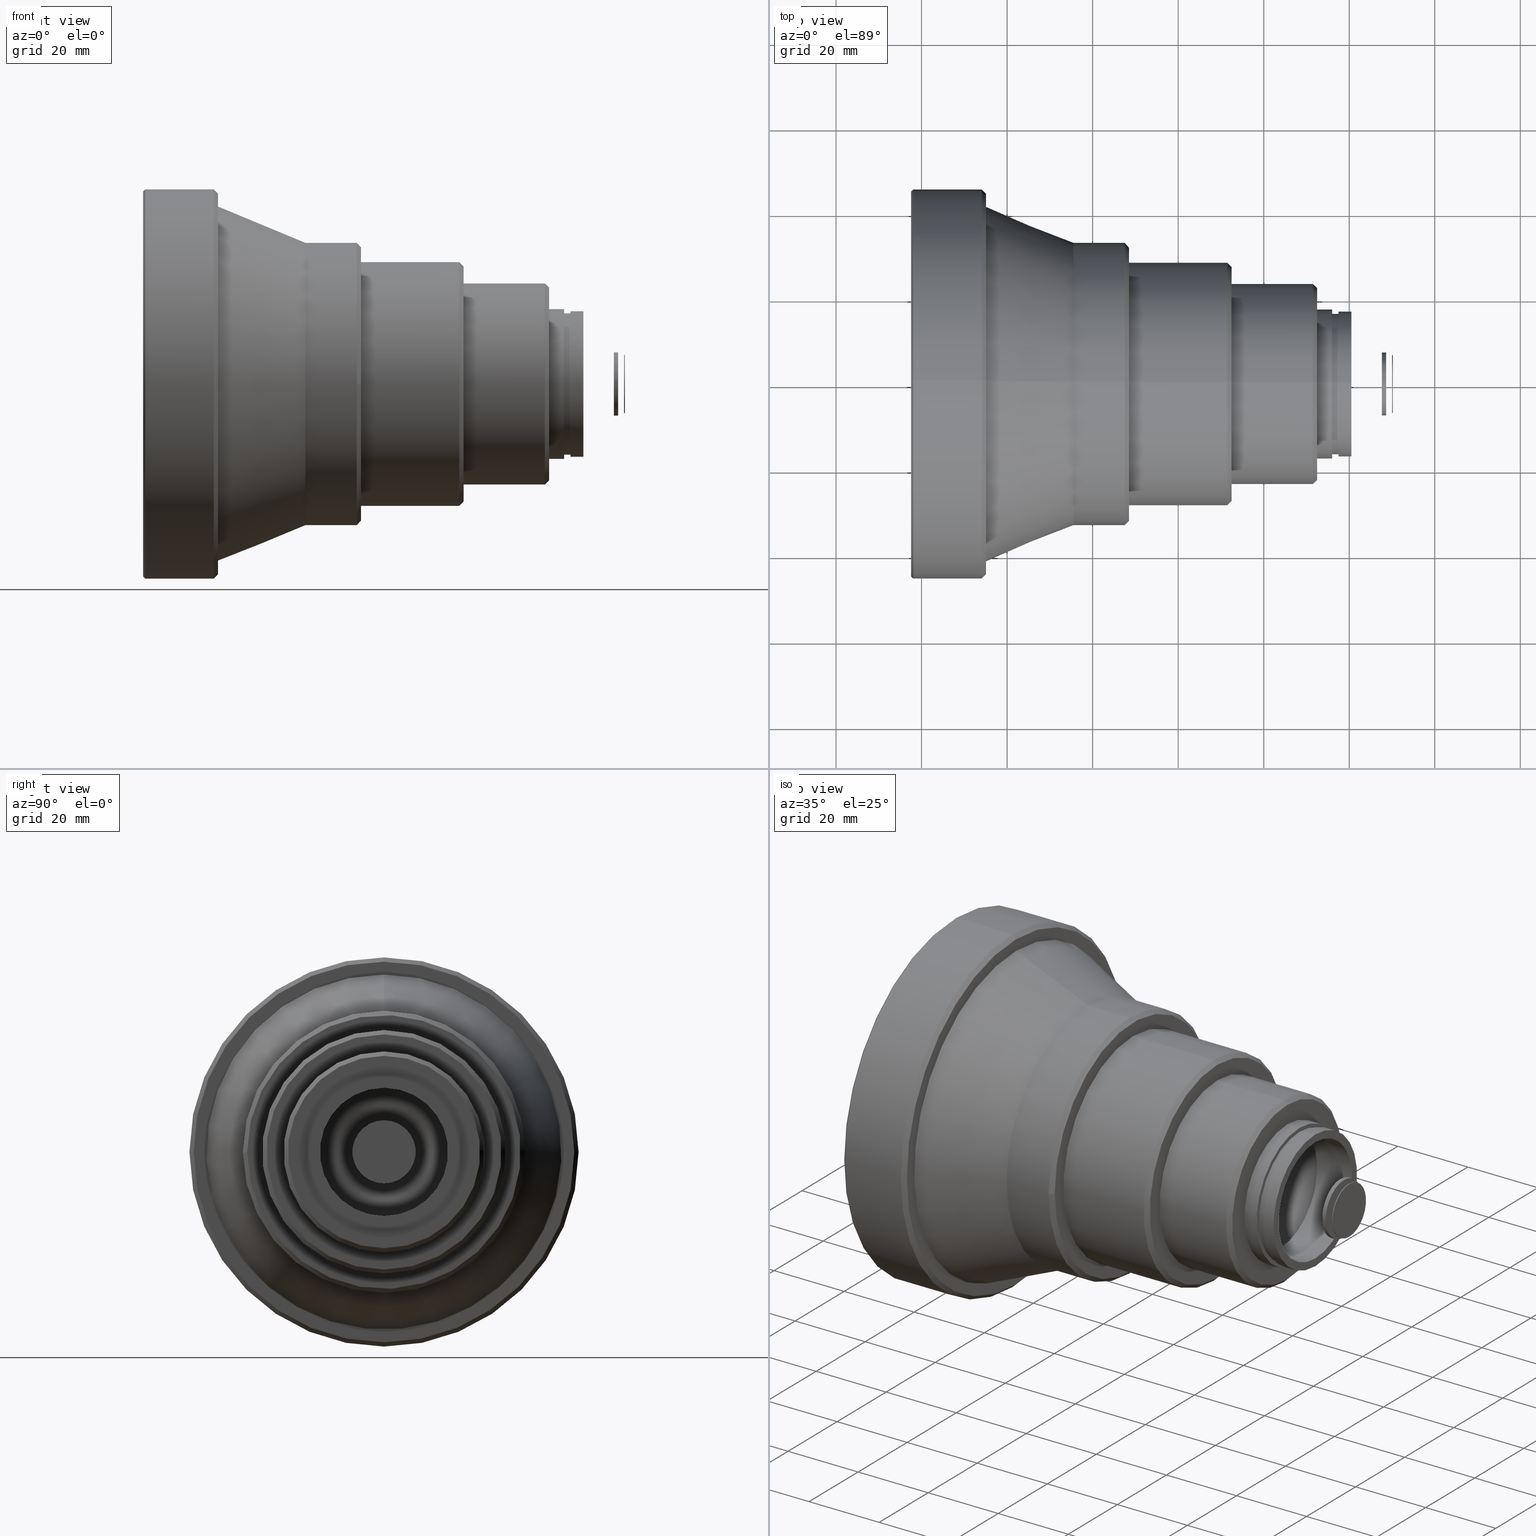
[diagram: canonical four-view strip — front | top / right | iso, engineering-drawing reading convention]
A machine part, canonical four-view strip (front | top / right | iso — engineering-drawing reading convention). The complete STEP part file that produces these views, byte-faithful:
ISO-10303-21;
HEADER;
FILE_DESCRIPTION (( 'STEP AP203' ),
    '1' );
FILE_NAME ('LA-0004-3100F1.2���Ȳͷ����ͼ.STEP',
    '2023-11-06T08:17:22',
    ( 'Windows User' ),
    ( 'P R C' ),
    'SwSTEP 2.0',
    'SolidWorks 2020',
    '' );
FILE_SCHEMA (( 'CONFIG_CONTROL_DESIGN' ));
ENDSEC;

DATA;
#1 = ADVANCED_FACE ( 'NONE', ( #392, #74 ), #245, .T. ) ;
#2 = DIRECTION ( 'NONE',  ( 0.000000000000000000, 0.000000000000000000, 1.000000000000000000 ) ) ;
#3 = CARTESIAN_POINT ( 'NONE',  ( 0.000000000000000000, 0.000000000000000000, 0.000000000000000000 ) ) ;
#4 = EDGE_LOOP ( 'NONE', ( #857 ) ) ;
#5 = CIRCLE ( 'NONE', #87, 44.49999999999620570 ) ;
#6 = DIRECTION ( 'NONE',  ( 1.000000000000000000, -0.000000000000000000, 0.000000000000000000 ) ) ;
#7 = PLANE ( 'NONE',  #283 ) ;
#8 = EDGE_CURVE ( 'NONE', #407, #407, #466, .T. ) ;
#9 = CARTESIAN_POINT ( 'NONE',  ( 8.726155933450170821, 0.000000000000000000, 41.19188659498396277 ) ) ;
#10 = FACE_BOUND ( 'NONE', #582, .T. ) ;
#11 = FACE_OUTER_BOUND ( 'NONE', #711, .T. ) ;
#12 = AXIS2_PLACEMENT_3D ( 'NONE', #85, #72, #353 ) ;
#13 = PLANE ( 'NONE',  #175 ) ;
#14 = CARTESIAN_POINT ( 'NONE',  ( 8.726155933450170821, 0.000000000000000000, 41.19188659498396277 ) ) ;
#15 = EDGE_LOOP ( 'NONE', ( #593 ) ) ;
#16 = PERSON_AND_ORGANIZATION_ROLE ( 'design_owner' ) ;
#17 = CC_DESIGN_DATE_AND_TIME_ASSIGNMENT ( #411, #676, ( #479 ) ) ;
#18 = AXIS2_PLACEMENT_3D ( 'NONE', #255, #590, #655 ) ;
#19 = CARTESIAN_POINT ( 'NONE',  ( 35.49999999999989342, 0.000000000000000000, 0.000000000000000000 ) ) ;
#20 = CARTESIAN_POINT ( 'NONE',  ( 95.99999999999988631, 16.50000000000000000, 0.000000000000000000 ) ) ;
#21 = CARTESIAN_POINT ( 'NONE',  ( 8.297506819360565444, 82.19765089892955245, 41.09882544946477623 ) ) ;
#22 = EDGE_LOOP ( 'NONE', ( #847 ) ) ;
#23 = ADVANCED_FACE ( 'NONE', ( #598, #10 ), #723, .F. ) ;
#24 = APPROVAL_STATUS ( 'not_yet_approved' ) ;
#25 = AXIS2_PLACEMENT_3D ( 'NONE', #573, #706, #38 ) ;
#26 = VERTEX_POINT ( 'NONE', #799 ) ;
#27 = EDGE_LOOP ( 'NONE', ( #516 ) ) ;
#28 = DIRECTION ( 'NONE',  ( 0.000000000000000000, 0.000000000000000000, 1.000000000000000000 ) ) ;
#29 = VERTEX_POINT ( 'NONE', #99 ) ;
#30 = CARTESIAN_POINT ( 'NONE',  ( 69.36981069471742956, -21.62215187712780207, -7.143884906403351387 ) ) ;
#31 = ORIENTED_EDGE ( 'NONE', *, *, #525, .T. ) ;
#32 = CARTESIAN_POINT ( 'NONE',  ( 17.64822494305094835, 42.14469408614510115, 38.11297469787338343 ) ) ;
#33 = PERSON_AND_ORGANIZATION_ROLE ( 'design_supplier' ) ;
#34 = ADVANCED_FACE ( 'NONE', ( #519, #386 ), #260, .F. ) ;
#35 = CARTESIAN_POINT ( 'NONE',  ( 69.33794784967651026, 7.507822388636141042, 21.89916491050351155 ) ) ;
#36 = DIRECTION ( 'NONE',  ( -1.000000000000000000, 0.000000000000000000, 0.000000000000000000 ) ) ;
#37 = FACE_OUTER_BOUND ( 'NONE', #683, .T. ) ;
#38 = DIRECTION ( 'NONE',  ( 0.000000000000000000, 0.000000000000000000, 1.000000000000000000 ) ) ;
#39 = CIRCLE ( 'NONE', #157, 22.50000000000000000 ) ;
#40 = AXIS2_PLACEMENT_3D ( 'NONE', #339, #465, #600 ) ;
#41 = CYLINDRICAL_SURFACE ( 'NONE', #242, 23.50000000000000000 ) ;
#42 = CARTESIAN_POINT ( 'NONE',  ( 97.49999999999988631, 0.000000000000000000, 16.50000000000000000 ) ) ;
#43 = CARTESIAN_POINT ( 'NONE',  ( 90.49999999999988631, 0.000000000000000000, 0.000000000000000000 ) ) ;
#44 = CARTESIAN_POINT ( 'NONE',  ( 17.72333843068783921, -42.32286795605585894, 38.07833783191616561 ) ) ;
#45 = DATE_TIME_ROLE ( 'classification_date' ) ;
#46 = CARTESIAN_POINT ( 'NONE',  ( 7.904574999999908869, 0.000000000000000000, 41.29377422517026730 ) ) ;
#47 = DIRECTION ( 'NONE',  ( -1.000000000000000000, -0.000000000000000000, -0.000000000000000000 ) ) ;
#48 = CARTESIAN_POINT ( 'NONE',  ( -2.445425000000071236, 44.99999999999611333, 0.000000000000000000 ) ) ;
#49 = CARTESIAN_POINT ( 'NONE',  ( 71.49999999999988631, 0.000000000000000000, 0.000000000000000000 ) ) ;
#50 = ADVANCED_FACE ( 'NONE', ( #720, #808 ), #522, .T. ) ;
#51 = AXIS2_PLACEMENT_3D ( 'NONE', #389, #658, #595 ) ;
#52 = ORIENTED_EDGE ( 'NONE', *, *, #82, .F. ) ;
#53 = CARTESIAN_POINT ( 'NONE',  ( 15.05457499999992166, 0.000000000000000000, 44.49999999999620570 ) ) ;
#54 = AXIS2_PLACEMENT_3D ( 'NONE', #57, #194, #383 ) ;
#55 = EDGE_LOOP ( 'NONE', ( #140 ) ) ;
#56 = CC_DESIGN_SECURITY_CLASSIFICATION ( #746, ( #515 ) ) ;
#57 = CARTESIAN_POINT ( 'NONE',  ( 0.000000000000000000, 0.000000000000000000, 0.000000000000000000 ) ) ;
#58 = ORIENTED_EDGE ( 'NONE', *, *, #153, .T. ) ;
#59 = AXIS2_PLACEMENT_3D ( 'NONE', #97, #756, #639 ) ;
#60 = AXIS2_PLACEMENT_3D ( 'NONE', #127, #532, #345 ) ;
#61 = CARTESIAN_POINT ( 'NONE',  ( 4.104574999999898388, 43.15000000000009095, 0.000000000000000000 ) ) ;
#62 = EDGE_LOOP ( 'NONE', ( #789 ) ) ;
#63 = EDGE_LOOP ( 'NONE', ( #31 ) ) ;
#64 = EDGE_CURVE ( 'NONE', #284, #284, #584, .T. ) ;
#65 = CIRCLE ( 'NONE', #502, 15.00000000000000000 ) ;
#66 = CARTESIAN_POINT ( 'NONE',  ( 0.000000000000000000, 0.000000000000000000, 0.000000000000000000 ) ) ;
#67 = CARTESIAN_POINT ( 'NONE',  ( 9.002876408520769758, -83.06443821328514332, -41.53221910664257166 ) ) ;
#68 = CARTESIAN_POINT ( 'NONE',  ( 14.05457499999992166, 0.000000000000000000, 0.000000000000000000 ) ) ;
#69 = ORIENTED_EDGE ( 'NONE', *, *, #192, .T. ) ;
#70 = FACE_OUTER_BOUND ( 'NONE', #380, .T. ) ;
#71 = ADVANCED_FACE ( 'NONE', ( #122, #793 ), #477, .T. ) ;
#72 = DIRECTION ( 'NONE',  ( -1.000000000000000000, -0.000000000000000000, -0.000000000000000000 ) ) ;
#73 = CARTESIAN_POINT ( 'NONE',  ( 8.726155933450170821, 0.000000000000000000, -41.19188659498396277 ) ) ;
#74 = FACE_OUTER_BOUND ( 'NONE', #327, .T. ) ;
#75 = PLANE ( 'NONE',  #367 ) ;
#76 = FACE_BOUND ( 'NONE', #555, .T. ) ;
#77 = DIRECTION ( 'NONE',  ( 0.000000000000000000, 0.000000000000000000, 1.000000000000000000 ) ) ;
#78 = EDGE_LOOP ( 'NONE', ( #725 ) ) ;
#79 = DIRECTION ( 'NONE',  ( 0.000000000000000000, 0.000000000000000000, 1.000000000000000000 ) ) ;
#80 = VERTEX_POINT ( 'NONE', #314 ) ;
#81 = PLANE ( 'NONE',  #505 ) ;
#82 = EDGE_CURVE ( 'NONE', #26, #26, #687, .T. ) ;
#83 = EDGE_LOOP ( 'NONE', ( #387 ) ) ;
#84 = PERSON_AND_ORGANIZATION ( #100, #554 ) ;
#85 = CARTESIAN_POINT ( 'NONE',  ( 95.99999999999988631, 0.000000000000000000, 0.000000000000000000 ) ) ;
#86 = EDGE_LOOP ( 'NONE', ( #130 ) ) ;
#87 = AXIS2_PLACEMENT_3D ( 'NONE', #529, #726, #126 ) ;
#88 = CARTESIAN_POINT ( 'NONE',  ( 0.000000000000000000, 0.000000000000000000, 0.000000000000000000 ) ) ;
#89 = CARTESIAN_POINT ( 'NONE',  ( 90.49999999999988631, 0.000000000000000000, 15.00000000000000000 ) ) ;
#90 = CARTESIAN_POINT ( 'NONE',  ( -1.945425000000069904, 0.000000000000000000, 0.000000000000000000 ) ) ;
#91 = EDGE_LOOP ( 'NONE', ( #527 ) ) ;
#92 = PLANE ( 'NONE',  #850 ) ;
#93 = EDGE_CURVE ( 'NONE', #198, #198, #319, .T. ) ;
#94 = CARTESIAN_POINT ( 'NONE',  ( 48.50000000000000000, -32.00000000000000000, 0.000000000000000000 ) ) ;
#95 = AXIS2_PLACEMENT_3D ( 'NONE', #539, #463, #188 ) ;
#96 = AXIS2_PLACEMENT_3D ( 'NONE', #270, #537, #279 ) ;
#97 = CARTESIAN_POINT ( 'NONE',  ( 4.104574999999892171, 0.000000000000000000, 0.000000000000000000 ) ) ;
#98 = CYLINDRICAL_SURFACE ( 'NONE', #654, 7.392353999999997427 ) ;
#99 = CARTESIAN_POINT ( 'NONE',  ( -1.945425000000067239, 0.000000000000000000, -45.49999999999612044 ) ) ;
#100 = PERSON ( 'δָ��', 'δָ��', 'δָ��', ('δָ��'), ('δָ��'), ('δָ��') ) ;
#101 = DIRECTION ( 'NONE',  ( 0.000000000000000000, 0.000000000000000000, 1.000000000000000000 ) ) ;
#102 = CYLINDRICAL_SURFACE ( 'NONE', #682, 33.00000000000000000 ) ;
#103 = CARTESIAN_POINT ( 'NONE',  ( 17.81009871615539453, -42.32286795605585894, -38.26592523585217265 ) ) ;
#104 = VERTEX_POINT ( 'NONE', #647 ) ;
#105 = DIRECTION ( 'NONE',  ( 0.000000000000000000, 0.000000000000000000, 1.000000000000000000 ) ) ;
#106 = DIRECTION ( 'NONE',  ( -1.000000000000000000, -0.000000000000000000, -0.000000000000000000 ) ) ;
#107 = AXIS2_PLACEMENT_3D ( 'NONE', #732, #340, #820 ) ;
#108 = CIRCLE ( 'NONE', #745, 6.799268999999997121 ) ;
#109 = APPROVAL ( #545, 'δָ��' ) ;
#110 = VERTEX_POINT ( 'NONE', #368 ) ;
#111 = PLANE ( 'NONE',  #225 ) ;
#112 = DIRECTION ( 'NONE',  ( 0.000000000000000000, 0.000000000000000000, 1.000000000000000000 ) ) ;
#113 = ADVANCED_FACE ( 'NONE', ( #852, #331 ), #740, .T. ) ;
#114 = CARTESIAN_POINT ( 'NONE',  ( 9.002876408520767981, 0.000000000000000000, 41.53221910664256455 ) ) ;
#115 = FACE_OUTER_BOUND ( 'NONE', #787, .T. ) ;
#116 = SHAPE_DEFINITION_REPRESENTATION ( #373, #295 ) ;
#117 = VERTEX_POINT ( 'NONE', #114 ) ;
#118 = LOCAL_TIME ( 16, 17, 22.00000000000000000, #182 ) ;
#119 = AXIS2_PLACEMENT_3D ( 'NONE', #275, #811, #542 ) ;
#120 = DIRECTION ( 'NONE',  ( 1.000000000000000000, 0.000000000000000000, 0.000000000000000000 ) ) ;
#121 = EDGE_LOOP ( 'NONE', ( #780 ) ) ;
#122 = FACE_OUTER_BOUND ( 'NONE', #55, .T. ) ;
#123 = EDGE_LOOP ( 'NONE', ( #678 ) ) ;
#124 = ORIENTED_EDGE ( 'NONE', *, *, #640, .F. ) ;
#125 = CIRCLE ( 'NONE', #422, 21.30000092681467905 ) ;
#126 = DIRECTION ( 'NONE',  ( 0.000000000000000000, 0.000000000000000000, 1.000000000000000000 ) ) ;
#127 = CARTESIAN_POINT ( 'NONE',  ( 7.904574999999908869, 0.000000000000000000, 0.000000000000000000 ) ) ;
#128 = CLOSED_SHELL ( 'NONE', ( #648, #217, #143 ) ) ;
#129 = DIRECTION ( 'NONE',  ( 1.000000000000000000, 0.000000000000000000, 0.000000000000000000 ) ) ;
#130 = ORIENTED_EDGE ( 'NONE', *, *, #563, .F. ) ;
#131 = ADVANCED_FACE ( 'NONE', ( #468, #341 ), #81, .F. ) ;
#132 = CARTESIAN_POINT ( 'NONE',  ( 100.4999999999999289, 0.000000000000000000, 0.000000000000000000 ) ) ;
#133 = CARTESIAN_POINT ( 'NONE',  ( 73.64955650230153594, -21.62215187712780207, 20.52876435087253881 ) ) ;
#134 = DIRECTION ( 'NONE',  ( -1.000000000000000000, -0.000000000000000000, -0.000000000000000000 ) ) ;
#135 = ORIENTED_EDGE ( 'NONE', *, *, #848, .F. ) ;
#136 = DIRECTION ( 'NONE',  ( -1.000000000000000000, 0.000000000000000000, 0.000000000000000000 ) ) ;
#137 = APPROVAL ( #318, 'δָ��' ) ;
#138 = FACE_BOUND ( 'NONE', #291, .T. ) ;
#139 = CARTESIAN_POINT ( 'NONE',  ( 8.297506819360565444, -82.19765089892955245, -41.09882544946477623 ) ) ;
#140 = ORIENTED_EDGE ( 'NONE', *, *, #788, .T. ) ;
#141 = CIRCLE ( 'NONE', #313, 16.50000000000000000 ) ;
#142 = CYLINDRICAL_SURFACE ( 'NONE', #325, 21.30000092681467905 ) ;
#143 = ADVANCED_FACE ( 'NONE', ( #609 ), #548, .F. ) ;
#144 = CIRCLE ( 'NONE', #60, 41.05000000000001137 ) ;
#145 = DIRECTION ( 'NONE',  ( 4.765723835101524394E-18, 1.000000000000000000, 0.000000000000000000 ) ) ;
#146 = CARTESIAN_POINT ( 'NONE',  ( 7.904574999999910645, 0.000000000000000000, -41.29377422517026730 ) ) ;
#147 = EDGE_LOOP ( 'NONE', ( #650 ) ) ;
#148 = FACE_OUTER_BOUND ( 'NONE', #497, .T. ) ;
#149 = EDGE_LOOP ( 'NONE', ( #748 ) ) ;
#150 = DIRECTION ( 'NONE',  ( -1.000000000000000000, -0.000000000000000000, -0.000000000000000000 ) ) ;
#151 = APPROVAL_ROLE ( '' ) ;
#152 = FACE_OUTER_BOUND ( 'NONE', #586, .T. ) ;
#153 = EDGE_CURVE ( 'NONE', #602, #602, #637, .T. ) ;
#154 = EDGE_LOOP ( 'NONE', ( #794 ) ) ;
#155 = FACE_OUTER_BOUND ( 'NONE', #62, .T. ) ;
#156 = PERSON_AND_ORGANIZATION_ROLE ( 'classification_officer' ) ;
#157 = AXIS2_PLACEMENT_3D ( 'NONE', #768, #556, #350 ) ;
#158 = DIRECTION ( 'NONE',  ( 0.000000000000000000, 0.000000000000000000, 1.000000000000000000 ) ) ;
#159 = ORIENTED_EDGE ( 'NONE', *, *, #64, .F. ) ;
#160 = CARTESIAN_POINT ( 'NONE',  ( -6.715904475607134216, -15.10963826692569789, 15.32605364564862960 ) ) ;
#161 = DIRECTION ( 'NONE',  ( 1.000000000000000000, 0.000000000000000000, 0.000000000000000000 ) ) ;
#162 = EDGE_CURVE ( 'NONE', #80, #80, #144, .T. ) ;
#163 = FACE_OUTER_BOUND ( 'NONE', #591, .T. ) ;
#164 = CARTESIAN_POINT ( 'NONE',  ( 64.75949163304437661, 7.507822388636140154, 7.494244173597468972 ) ) ;
#165 = DIRECTION ( 'NONE',  ( -1.000000000000000000, -0.000000000000000000, -0.000000000000000000 ) ) ;
#166 = VERTEX_POINT ( 'NONE', #94 ) ;
#167 = DIRECTION ( 'NONE',  ( 0.000000000000000000, 0.000000000000000000, -1.000000000000000000 ) ) ;
#168 = FACE_BOUND ( 'NONE', #661, .T. ) ;
#169 = APPROVAL ( #24, 'δָ��' ) ;
#170 = DIRECTION ( 'NONE',  ( 0.000000000000000000, 0.000000000000000000, 1.000000000000000000 ) ) ;
#171 = VERTEX_POINT ( 'NONE', #431 ) ;
#172 = FACE_OUTER_BOUND ( 'NONE', #753, .T. ) ;
#173 = EDGE_CURVE ( 'NONE', #846, #846, #704, .T. ) ;
#174 = FACE_OUTER_BOUND ( 'NONE', #675, .T. ) ;
#175 = AXIS2_PLACEMENT_3D ( 'NONE', #274, #541, #751 ) ;
#176 = VERTEX_POINT ( 'NONE', #243 ) ;
#177 = DIRECTION ( 'NONE',  ( 0.000000000000000000, 0.000000000000000000, 1.000000000000000000 ) ) ;
#178 = VERTEX_POINT ( 'NONE', #773 ) ;
#179 = CARTESIAN_POINT ( 'NONE',  ( 48.50000000000000000, 0.000000000000000000, 0.000000000000000000 ) ) ;
#180 = ADVANCED_FACE ( 'NONE', ( #259, #660 ), #526, .F. ) ;
#181 = ORIENTED_EDGE ( 'NONE', *, *, #162, .F. ) ;
#182 = COORDINATED_UNIVERSAL_TIME_OFFSET ( 8, 0, .AHEAD. ) ;
#183 = CIRCLE ( 'NONE', #25, 41.53221910664256455 ) ;
#184 = ORIENTED_EDGE ( 'NONE', *, *, #460, .T. ) ;
#185 = AXIS2_PLACEMENT_3D ( 'NONE', #458, #136, #333 ) ;
#186 = DIRECTION ( 'NONE',  ( 0.000000000000000000, 0.000000000000000000, 1.000000000000000000 ) ) ;
#187 = EDGE_LOOP ( 'NONE', ( #560 ) ) ;
#188 = DIRECTION ( 'NONE',  ( 0.000000000000000000, 0.000000000000000000, 1.000000000000000000 ) ) ;
#189 = ORIENTED_EDGE ( 'NONE', *, *, #324, .F. ) ;
#190 = FACE_OUTER_BOUND ( 'NONE', #266, .T. ) ;
#191 = AXIS2_PLACEMENT_3D ( 'NONE', #369, #709, #760 ) ;
#192 = EDGE_CURVE ( 'NONE', #583, #583, #108, .T. ) ;
#193 = CARTESIAN_POINT ( 'NONE',  ( 8.297506819360565444, 0.000000000000000000, 41.09882544946476912 ) ) ;
#194 = DIRECTION ( 'NONE',  ( -1.000000000000000000, -0.000000000000000000, -0.000000000000000000 ) ) ;
#195 = EDGE_LOOP ( 'NONE', ( #456 ) ) ;
#196 = AXIS2_PLACEMENT_3D ( 'NONE', #625, #569, #702 ) ;
#197 = CYLINDRICAL_SURFACE ( 'NONE', #601, 41.05000000000001137 ) ;
#198 = VERTEX_POINT ( 'NONE', #205 ) ;
#199 =( BOUNDED_SURFACE ( )  B_SPLINE_SURFACE ( 3, 3, ( 
 ( #419, #691, #498, #32 ),
 ( #292, #827, #226, #830 ),
 ( #500, #759, #160, #763 ),
 ( #103, #362, #767, #44 ) ),
 .UNSPECIFIED., .F., .F., .F. ) 
 B_SPLINE_SURFACE_WITH_KNOTS ( ( 4, 4 ),
 ( 4, 4 ),
 ( 0.000000000000000000, 1.000000000000000000 ),
 ( 0.000000000000000000, 1.000000000000000000 ),
 .UNSPECIFIED. ) 
 GEOMETRIC_REPRESENTATION_ITEM ( )  RATIONAL_B_SPLINE_SURFACE ( (
 ( 1.000000000000000000, 0.9384166616224672852, 0.9384166616224672852, 1.000000000000000000),
 ( 0.9380172811284777090, 0.8802510455007693801, 0.8802510455007693801, 0.9380172811284777090),
 ( 0.9380172811284777090, 0.8802510455007693801, 0.8802510455007693801, 0.9380172811284777090),
 ( 1.000000000000000000, 0.9384166616224672852, 0.9384166616224672852, 1.000000000000000000) ) ) 
 REPRESENTATION_ITEM ( '' )  SURFACE ( )  );
#200 = CARTESIAN_POINT ( 'NONE',  ( 7.904574999999909757, 82.58754845034053460, -41.29377422517026730 ) ) ;
#201 = CARTESIAN_POINT ( 'NONE',  ( 97.49999999999988631, 0.000000000000000000, 0.000000000000000000 ) ) ;
#202 = EDGE_LOOP ( 'NONE', ( #349 ) ) ;
#203 = AXIS2_PLACEMENT_3D ( 'NONE', #90, #400, #806 ) ;
#204 = DIRECTION ( 'NONE',  ( 0.000000000000000000, 0.000000000000000000, 1.000000000000000000 ) ) ;
#205 = CARTESIAN_POINT ( 'NONE',  ( 7.398278830414312779, 0.000000000000000000, 41.05000000000001137 ) ) ;
#206 = CARTESIAN_POINT ( 'NONE',  ( 7.904574999999909757, 82.58754845034053460, 41.29377422517026730 ) ) ;
#207 = DIRECTION ( 'NONE',  ( -1.000000000000000000, -0.000000000000000000, -0.000000000000000000 ) ) ;
#208 = DIRECTION ( 'NONE',  ( 0.000000000000000000, 0.000000000000000000, 1.000000000000000000 ) ) ;
#209 = DIRECTION ( 'NONE',  ( 0.000000000000000000, 0.000000000000000000, 1.000000000000000000 ) ) ;
#210 = CARTESIAN_POINT ( 'NONE',  ( 15.05457499999991455, 0.000000000000000000, 0.000000000000000000 ) ) ;
#211 = ORIENTED_EDGE ( 'NONE', *, *, #302, .F. ) ;
#212 = PERSON_AND_ORGANIZATION_ROLE ( 'creator' ) ;
#213 = CIRCLE ( 'NONE', #550, 32.00000000000000000 ) ;
#214 = AXIS2_PLACEMENT_3D ( 'NONE', #273, #540, #399 ) ;
#215 = DIRECTION ( 'NONE',  ( 1.000000000000000000, 0.000000000000000000, 0.000000000000000000 ) ) ;
#216 = EDGE_LOOP ( 'NONE', ( #224 ) ) ;
#217 = ADVANCED_FACE ( 'NONE', ( #190, #395 ), #791, .T. ) ;
#218 = DIRECTION ( 'NONE',  ( -1.000000000000000000, 0.000000000000000000, 0.000000000000000000 ) ) ;
#219 = ORIENTED_EDGE ( 'NONE', *, *, #246, .T. ) ;
#220 = DIRECTION ( 'NONE',  ( 1.000000000000000000, 0.000000000000000000, 0.000000000000000000 ) ) ;
#221 = PERSON_AND_ORGANIZATION ( #100, #554 ) ;
#222 = CARTESIAN_POINT ( 'NONE',  ( 69.37576424659823715, 7.507822388636141042, -22.01779041749333743 ) ) ;
#223 = ADVANCED_FACE ( 'NONE', ( #809, #739 ), #535, .F. ) ;
#224 = ORIENTED_EDGE ( 'NONE', *, *, #774, .F. ) ;
#225 = AXIS2_PLACEMENT_3D ( 'NONE', #572, #360, #167 ) ;
#226 = CARTESIAN_POINT ( 'NONE',  ( -6.746267418012839023, 14.90671066450786242, 15.33040200944023823 ) ) ;
#227 =( LENGTH_UNIT ( ) NAMED_UNIT ( * ) SI_UNIT ( .MILLI., .METRE. ) );
#228 = FACE_OUTER_BOUND ( 'NONE', #786, .T. ) ;
#229 = UNCERTAINTY_MEASURE_WITH_UNIT (LENGTH_MEASURE( 1.000000000000000082E-05 ), #227, 'distance_accuracy_value', 'NONE');
#230 = CARTESIAN_POINT ( 'NONE',  ( 95.99999999999988631, 0.000000000000000000, 0.000000000000000000 ) ) ;
#231 = VERTEX_POINT ( 'NONE', #293 ) ;
#232 = ADVANCED_FACE ( 'NONE', ( #70 ), #75, .F. ) ;
#233 = PLANE ( 'NONE',  #268 ) ;
#234 = FACE_OUTER_BOUND ( 'NONE', #528, .T. ) ;
#235 = FACE_OUTER_BOUND ( 'NONE', #216, .T. ) ;
#236 = CARTESIAN_POINT ( 'NONE',  ( 48.50000000000000000, 0.000000000000000000, 28.50000000000000000 ) ) ;
#237 = ADVANCED_FACE ( 'NONE', ( #329, #11 ), #784, .T. ) ;
#238 = DIRECTION ( 'NONE',  ( 0.000000000000000000, 0.000000000000000000, 1.000000000000000000 ) ) ;
#239 = CARTESIAN_POINT ( 'NONE',  ( 14.05457499999991988, 0.000000000000000000, 0.000000000000000000 ) ) ;
#240 = CARTESIAN_POINT ( 'NONE',  ( 47.50000000000000000, 0.000000000000000000, 33.00000000000000000 ) ) ;
#241 = DIRECTION ( 'NONE',  ( -1.000000000000000000, 0.000000000000000000, 0.000000000000000000 ) ) ;
#242 = AXIS2_PLACEMENT_3D ( 'NONE', #303, #165, #358 ) ;
#243 = CARTESIAN_POINT ( 'NONE',  ( 71.49999999999988631, 0.000000000000000000, 28.50000000000000000 ) ) ;
#244 = DIRECTION ( 'NONE',  ( -1.000000000000000000, 0.000000000000000000, 0.000000000000000000 ) ) ;
#245 = CONICAL_SURFACE ( 'NONE', #761, 45.49999999999619860, 0.7853981633974447263 ) ;
#246 = EDGE_CURVE ( 'NONE', #834, #834, #404, .T. ) ;
#247 = ORIENTED_EDGE ( 'NONE', *, *, #473, .F. ) ;
#248 = CARTESIAN_POINT ( 'NONE',  ( 107.6199999999999051, 0.000000000000000000, 7.392353999999997427 ) ) ;
#249 = ORIENTED_EDGE ( 'NONE', *, *, #302, .T. ) ;
#250 = AXIS2_PLACEMENT_3D ( 'NONE', #433, #499, #361 ) ;
#251 = EDGE_LOOP ( 'NONE', ( #184 ) ) ;
#252 = CIRCLE ( 'NONE', #40, 23.50000000000000000 ) ;
#253 = EDGE_CURVE ( 'NONE', #171, #171, #483, .T. ) ;
#254 = CC_DESIGN_APPROVAL ( #169, ( #515 ) ) ;
#255 = CARTESIAN_POINT ( 'NONE',  ( 7.398278830414312779, 0.000000000000000000, 0.000000000000000000 ) ) ;
#256 = ORIENTED_EDGE ( 'NONE', *, *, #316, .T. ) ;
#257 = EDGE_CURVE ( 'NONE', #377, #377, #252, .T. ) ;
#258 = DIRECTION ( 'NONE',  ( 0.000000000000000000, 0.000000000000000000, -1.000000000000000000 ) ) ;
#259 = FACE_BOUND ( 'NONE', #617, .T. ) ;
#260 = CYLINDRICAL_SURFACE ( 'NONE', #95, 15.00000000000000000 ) ;
#261 = EDGE_LOOP ( 'NONE', ( #189 ) ) ;
#262 = EDGE_LOOP ( 'NONE', ( #332 ) ) ;
#263 = CARTESIAN_POINT ( 'NONE',  ( 107.6199999999999051, 0.000000000000000000, 0.000000000000000000 ) ) ;
#264 = CIRCLE ( 'NONE', #417, 17.00000000000000000 ) ;
#265 = CARTESIAN_POINT ( 'NONE',  ( 9.002876408520769758, 83.06443821328514332, -41.53221910664257166 ) ) ;
#266 = EDGE_LOOP ( 'NONE', ( #69 ) ) ;
#267 = EDGE_LOOP ( 'NONE', ( #256 ) ) ;
#268 = AXIS2_PLACEMENT_3D ( 'NONE', #503, #241, #775 ) ;
#269 = CARTESIAN_POINT ( 'NONE',  ( 108.6199999999999051, 0.000000000000000000, 0.000000000000000000 ) ) ;
#270 = CARTESIAN_POINT ( 'NONE',  ( 7.904574999999908869, 41.29377422517026730, 0.000000000000000000 ) ) ;
#271 = CARTESIAN_POINT ( 'NONE',  ( 8.297506819360565444, 82.19765089892955245, -41.09882544946477623 ) ) ;
#272 = DIRECTION ( 'NONE',  ( 1.000000000000000000, -0.000000000000000000, 0.000000000000000000 ) ) ;
#273 = CARTESIAN_POINT ( 'NONE',  ( 91.49999999999977263, 0.000000000000000000, 0.000000000000000000 ) ) ;
#274 = CARTESIAN_POINT ( 'NONE',  ( 97.49999999999988631, 16.50000000000000000, 0.000000000000000000 ) ) ;
#275 = CARTESIAN_POINT ( 'NONE',  ( 109.9999999999999005, 0.000000000000000000, 0.000000000000000000 ) ) ;
#276 = EDGE_LOOP ( 'NONE', ( #452 ) ) ;
#277 = COORDINATED_UNIVERSAL_TIME_OFFSET ( 8, 0, .AHEAD. ) ;
#278 = DIRECTION ( 'NONE',  ( 2.102695122396129916E-16, 0.000000000000000000, 1.000000000000000000 ) ) ;
#279 = DIRECTION ( 'NONE',  ( 0.000000000000000000, 0.000000000000000000, 1.000000000000000000 ) ) ;
#280 = CARTESIAN_POINT ( 'NONE',  ( 8.726155933450170821, 82.38377318996792553, 41.19188659498396277 ) ) ;
#281 = ORIENTED_EDGE ( 'NONE', *, *, #596, .F. ) ;
#282 = APPROVAL_ROLE ( '' ) ;
#283 = AXIS2_PLACEMENT_3D ( 'NONE', #20, #344, #742 ) ;
#284 = VERTEX_POINT ( 'NONE', #616 ) ;
#285 = EDGE_LOOP ( 'NONE', ( #398 ) ) ;
#286 = CARTESIAN_POINT ( 'NONE',  ( 48.50000000000000000, 32.00000000000000000, 0.000000000000000000 ) ) ;
#287 = VERTEX_POINT ( 'NONE', #562 ) ;
#288 = LOCAL_TIME ( 16, 17, 22.00000000000000000, #717 ) ;
#289 = ADVANCED_FACE ( 'NONE', ( #813, #478 ), #142, .F. ) ;
#290 = FACE_BOUND ( 'NONE', #520, .T. ) ;
#291 = EDGE_LOOP ( 'NONE', ( #181 ) ) ;
#292 = CARTESIAN_POINT ( 'NONE',  ( 6.293698020668911042, 14.90671066450785887, -43.60822436751459463 ) ) ;
#293 = CARTESIAN_POINT ( 'NONE',  ( 100.4999999999999289, 0.000000000000000000, 15.00000000000000000 ) ) ;
#294 = CARTESIAN_POINT ( 'NONE',  ( 69.36615703619267492, -7.410052649604725872, -22.02086219747615914 ) ) ;
#295 = ADVANCED_BREP_SHAPE_REPRESENTATION ( 'LA-0004-3100F1.2���Ȳͷ����ͼ', ( #421, #406, #713, #731 ), #805 ) ;
#296 = CC_DESIGN_DATE_AND_TIME_ASSIGNMENT ( #712, #45, ( #746 ) ) ;
#297 = DIRECTION ( 'NONE',  ( 0.000000000000000000, 0.000000000000000000, 1.000000000000000000 ) ) ;
#298 = DATE_AND_TIME ( #359, #488 ) ;
#299 = CONICAL_SURFACE ( 'NONE', #59, 41.49999999999611333, 0.1357836160100415746 ) ;
#300 = FACE_BOUND ( 'NONE', #355, .T. ) ;
#301 = DIRECTION ( 'NONE',  ( -1.000000000000000000, -0.000000000000000000, -0.000000000000000000 ) ) ;
#302 = EDGE_CURVE ( 'NONE', #697, #697, #439, .T. ) ;
#303 = CARTESIAN_POINT ( 'NONE',  ( 0.000000000000000000, 0.000000000000000000, 0.000000000000000000 ) ) ;
#304 = VERTEX_POINT ( 'NONE', #53 ) ;
#305 = CYLINDRICAL_SURFACE ( 'NONE', #459, 16.50000000000000000 ) ;
#306 = DIRECTION ( 'NONE',  ( -1.000000000000000000, 0.000000000000000000, 0.000000000000000000 ) ) ;
#307 = CARTESIAN_POINT ( 'NONE',  ( 70.36366899999995894, 0.000000000000000000, 21.30000092681467905 ) ) ;
#308 = DIRECTION ( 'NONE',  ( 1.000000000000000000, 0.000000000000000000, 0.000000000000000000 ) ) ;
#309 = CARTESIAN_POINT ( 'NONE',  ( 72.49999999999988631, 0.000000000000000000, 27.50000000000000000 ) ) ;
#310 = CIRCLE ( 'NONE', #839, 28.50000000000000000 ) ;
#311 = EDGE_CURVE ( 'NONE', #178, #178, #755, .T. ) ;
#312 = DIRECTION ( 'NONE',  ( -1.000000000000000000, 0.000000000000000000, 0.000000000000000000 ) ) ;
#313 = AXIS2_PLACEMENT_3D ( 'NONE', #230, #220, #492 ) ;
#314 = CARTESIAN_POINT ( 'NONE',  ( 7.904574999999908869, 0.000000000000000000, 41.05000000000001137 ) ) ;
#315 = AXIS2_PLACEMENT_3D ( 'NONE', #201, #120, #470 ) ;
#316 = EDGE_CURVE ( 'NONE', #104, #104, #264, .T. ) ;
#317 = CIRCLE ( 'NONE', #623, 15.00000000000000000 ) ;
#318 = APPROVAL_STATUS ( 'not_yet_approved' ) ;
#319 = CIRCLE ( 'NONE', #18, 41.05000000000001137 ) ;
#320 = CC_DESIGN_PERSON_AND_ORGANIZATION_ASSIGNMENT ( #685, #16, ( #445 ) ) ;
#321 = CIRCLE ( 'NONE', #814, 41.49999999999611333 ) ;
#322 = DIRECTION ( 'NONE',  ( 0.000000000000000000, 0.000000000000000000, 1.000000000000000000 ) ) ;
#323 = ORIENTED_EDGE ( 'NONE', *, *, #64, .T. ) ;
#324 = EDGE_CURVE ( 'NONE', #304, #304, #5, .T. ) ;
#325 = AXIS2_PLACEMENT_3D ( 'NONE', #405, #672, #79 ) ;
#326 = DIRECTION ( 'NONE',  ( -1.000000000000000000, 0.000000000000000000, 0.000000000000000000 ) ) ;
#327 = EDGE_LOOP ( 'NONE', ( #721 ) ) ;
#328 = EDGE_LOOP ( 'NONE', ( #716 ) ) ;
#329 = FACE_BOUND ( 'NONE', #657, .T. ) ;
#330 = CARTESIAN_POINT ( 'NONE',  ( 7.904574999999910645, 0.000000000000000000, 41.29377422517026730 ) ) ;
#331 = FACE_OUTER_BOUND ( 'NONE', #418, .T. ) ;
#332 = ORIENTED_EDGE ( 'NONE', *, *, #686, .T. ) ;
#333 = DIRECTION ( 'NONE',  ( 0.000000000000000000, 0.000000000000000000, 1.000000000000000000 ) ) ;
#334 = EDGE_CURVE ( 'NONE', #363, #363, #448, .T. ) ;
#335 = AXIS2_PLACEMENT_3D ( 'NONE', #19, #663, #278 ) ;
#336 = CARTESIAN_POINT ( 'NONE',  ( 90.49999999999988631, 0.000000000000000000, 0.000000000000000000 ) ) ;
#337 = CARTESIAN_POINT ( 'NONE',  ( 8.726155933450170821, -82.38377318996792553, -41.19188659498396277 ) ) ;
#338 = ORIENTED_EDGE ( 'NONE', *, *, #311, .T. ) ;
#339 = CARTESIAN_POINT ( 'NONE',  ( 72.49999999999988631, 0.000000000000000000, 0.000000000000000000 ) ) ;
#340 = DIRECTION ( 'NONE',  ( 1.000000000000000000, 0.000000000000000000, 0.000000000000000000 ) ) ;
#341 = FACE_OUTER_BOUND ( 'NONE', #121, .T. ) ;
#342 = ORIENTED_EDGE ( 'NONE', *, *, #192, .F. ) ;
#343 = CARTESIAN_POINT ( 'NONE',  ( 4.104574999999898388, 0.000000000000000000, 0.000000000000000000 ) ) ;
#344 = DIRECTION ( 'NONE',  ( -1.000000000000000000, 0.000000000000000000, 0.000000000000000000 ) ) ;
#345 = DIRECTION ( 'NONE',  ( 0.000000000000000000, 0.000000000000000000, 1.000000000000000000 ) ) ;
#346 = ORIENTED_EDGE ( 'NONE', *, *, #173, .T. ) ;
#347 = APPLICATION_PROTOCOL_DEFINITION ( 'international standard', 'config_control_design', 1994, #824 ) ;
#348 = CARTESIAN_POINT ( 'NONE',  ( 91.49999999999977263, 0.000000000000000000, 23.50000000000000000 ) ) ;
#349 = ORIENTED_EDGE ( 'NONE', *, *, #324, .T. ) ;
#350 = DIRECTION ( 'NONE',  ( 0.000000000000000000, 0.000000000000000000, 1.000000000000000000 ) ) ;
#351 = PERSON_AND_ORGANIZATION_ROLE ( 'creator' ) ;
#352 = ADVANCED_FACE ( 'NONE', ( #859, #796 ), #197, .F. ) ;
#353 = DIRECTION ( 'NONE',  ( 0.000000000000000000, 0.000000000000000000, 1.000000000000000000 ) ) ;
#354 = CLOSED_SHELL ( 'NONE', ( #232, #558, #765 ) ) ;
#355 = EDGE_LOOP ( 'NONE', ( #338 ) ) ;
#356 = DIRECTION ( 'NONE',  ( 0.000000000000000000, 0.000000000000000000, 1.000000000000000000 ) ) ;
#357 = FACE_OUTER_BOUND ( 'NONE', #487, .T. ) ;
#358 = DIRECTION ( 'NONE',  ( 0.000000000000000000, 0.000000000000000000, 1.000000000000000000 ) ) ;
#359 = CALENDAR_DATE ( 2023, 6, 11 ) ;
#360 = DIRECTION ( 'NONE',  ( 1.000000000000000000, -0.000000000000000000, 0.000000000000000000 ) ) ;
#361 = DIRECTION ( 'NONE',  ( 0.000000000000000000, -1.000000000000000000, 0.000000000000000000 ) ) ;
#362 = CARTESIAN_POINT ( 'NONE',  ( 6.398434221997834292, -42.32286795605585894, -13.66578629225115549 ) ) ;
#363 = VERTEX_POINT ( 'NONE', #42 ) ;
#364 = CIRCLE ( 'NONE', #107, 6.799268999999997121 ) ;
#365 = CARTESIAN_POINT ( 'NONE',  ( 72.49999999999988631, 0.000000000000000000, 0.000000000000000000 ) ) ;
#366 = CARTESIAN_POINT ( 'NONE',  ( 0.000000000000000000, 0.000000000000000000, 0.000000000000000000 ) ) ;
#367 = AXIS2_PLACEMENT_3D ( 'NONE', #606, #6, #258 ) ;
#368 = CARTESIAN_POINT ( 'NONE',  ( 92.49999999999988631, 0.000000000000000000, 22.50000000000000000 ) ) ;
#369 = CARTESIAN_POINT ( 'NONE',  ( -2.445425000000127636, 43.15000000000009095, 0.000000000000000000 ) ) ;
#370 = CARTESIAN_POINT ( 'NONE',  ( 69.39958493846634724, 21.71377720180500148, -7.140796341634624511 ) ) ;
#371 = ADVANCED_FACE ( 'NONE', ( #172, #374 ), #305, .T. ) ;
#372 = VERTEX_POINT ( 'NONE', #643 ) ;
#373 = PRODUCT_DEFINITION_SHAPE ( 'NONE', 'NONE',  #479 ) ;
#374 = FACE_OUTER_BOUND ( 'NONE', #22, .T. ) ;
#375 = EDGE_LOOP ( 'NONE', ( #219 ) ) ;
#376 = PERSON_AND_ORGANIZATION ( #100, #554 ) ;
#377 = VERTEX_POINT ( 'NONE', #636 ) ;
#378 = AXIS2_PLACEMENT_3D ( 'NONE', #343, #612, #730 ) ;
#379 = ADVANCED_FACE ( 'NONE', ( #693, #705 ), #111, .F. ) ;
#380 = EDGE_LOOP ( 'NONE', ( #471 ) ) ;
#381 = APPROVAL_DATE_TIME ( #574, #137 ) ;
#382 = ADVANCED_FACE ( 'NONE', ( #770, #631 ), #495, .T. ) ;
#383 = DIRECTION ( 'NONE',  ( 0.000000000000000000, 0.000000000000000000, 1.000000000000000000 ) ) ;
#384 = ORIENTED_EDGE ( 'NONE', *, *, #8, .F. ) ;
#385 = AXIS2_PLACEMENT_3D ( 'NONE', #629, #618, #822 ) ;
#386 = FACE_OUTER_BOUND ( 'NONE', #147, .T. ) ;
#387 = ORIENTED_EDGE ( 'NONE', *, *, #531, .F. ) ;
#388 = ORIENTED_EDGE ( 'NONE', *, *, #531, .T. ) ;
#389 = CARTESIAN_POINT ( 'NONE',  ( 97.49999999999988631, 0.000000000000000000, 0.000000000000000000 ) ) ;
#390 = DIRECTION ( 'NONE',  ( 1.000000000000000000, -2.382861917550762582E-18, 0.000000000000000000 ) ) ;
#391 = CC_DESIGN_APPROVAL ( #109, ( #479 ) ) ;
#392 = FACE_BOUND ( 'NONE', #202, .T. ) ;
#393 = EDGE_LOOP ( 'NONE', ( #281 ) ) ;
#394 = ADVANCED_FACE ( 'NONE', ( #37, #432 ), #508, .F. ) ;
#395 = FACE_OUTER_BOUND ( 'NONE', #78, .T. ) ;
#396 = PLANE ( 'NONE',  #96 ) ;
#397 = CARTESIAN_POINT ( 'NONE',  ( 9.002876408520769758, -83.06443821328514332, 41.53221910664257166 ) ) ;
#398 = ORIENTED_EDGE ( 'NONE', *, *, #162, .T. ) ;
#399 = DIRECTION ( 'NONE',  ( 0.000000000000000000, 0.000000000000000000, 1.000000000000000000 ) ) ;
#400 = DIRECTION ( 'NONE',  ( -1.000000000000000000, -0.000000000000000000, -0.000000000000000000 ) ) ;
#401 = CARTESIAN_POINT ( 'NONE',  ( 7.904574999999910645, 0.000000000000000000, 41.29377422517026730 ) ) ;
#402 = EDGE_LOOP ( 'NONE', ( #247 ) ) ;
#403 = AXIS2_PLACEMENT_3D ( 'NONE', #365, #326, #170 ) ;
#404 = CIRCLE ( 'NONE', #671, 7.392353999999997427 ) ;
#405 = CARTESIAN_POINT ( 'NONE',  ( 0.000000000000000000, 0.000000000000000000, 0.000000000000000000 ) ) ;
#406 = MANIFOLD_SOLID_BREP ( '��ת1[3]', #354 ) ;
#407 = VERTEX_POINT ( 'NONE', #348 ) ;
#408 = DIRECTION ( 'NONE',  ( 0.000000000000000000, 0.000000000000000000, 1.000000000000000000 ) ) ;
#409 = EDGE_LOOP ( 'NONE', ( #744 ) ) ;
#410 = ADVANCED_FACE ( 'NONE', ( #642, #163 ), #441, .T. ) ;
#411 = DATE_AND_TIME ( #484, #659 ) ;
#412 = FACE_OUTER_BOUND ( 'NONE', #195, .T. ) ;
#413 = EDGE_CURVE ( 'NONE', #570, #570, #310, .T. ) ;
#414 = FACE_OUTER_BOUND ( 'NONE', #262, .T. ) ;
#415 = DATE_AND_TIME ( #819, #845 ) ;
#416 = DIRECTION ( 'NONE',  ( 1.000000000000000000, 0.000000000000000000, 0.000000000000000000 ) ) ;
#417 = AXIS2_PLACEMENT_3D ( 'NONE', #132, #546, #854 ) ;
#418 = EDGE_LOOP ( 'NONE', ( #666 ) ) ;
#419 = CARTESIAN_POINT ( 'NONE',  ( 17.73506414751942373, 42.14469408614510115, -38.30073273530169331 ) ) ;
#420 =( NAMED_UNIT ( * ) PLANE_ANGLE_UNIT ( ) SI_UNIT ( $, .RADIAN. ) );
#421 = MANIFOLD_SOLID_BREP ( 'NONE', #621 ) ;
#422 = AXIS2_PLACEMENT_3D ( 'NONE', #43, #698, #105 ) ;
#423 = DIRECTION ( 'NONE',  ( 2.090028284309601916E-17, -1.000000000000000000, 0.000000000000000000 ) ) ;
#424 = ORIENTED_EDGE ( 'NONE', *, *, #173, .F. ) ;
#425 = CARTESIAN_POINT ( 'NONE',  ( 70.36366899999995894, 0.000000000000000000, 0.000000000000000000 ) ) ;
#426 = PERSON_AND_ORGANIZATION ( #100, #554 ) ;
#427 = CC_DESIGN_APPROVAL ( #137, ( #746 ) ) ;
#428 = CARTESIAN_POINT ( 'NONE',  ( 0.000000000000000000, 0.000000000000000000, 0.000000000000000000 ) ) ;
#429 = DIRECTION ( 'NONE',  ( 0.000000000000000000, 0.000000000000000000, 1.000000000000000000 ) ) ;
#430 = CARTESIAN_POINT ( 'NONE',  ( 0.000000000000000000, 0.000000000000000000, 0.000000000000000000 ) ) ;
#431 = CARTESIAN_POINT ( 'NONE',  ( 108.6199999999999051, 0.000000000000000000, 7.392353999999997427 ) ) ;
#432 = FACE_BOUND ( 'NONE', #63, .T. ) ;
#433 = CARTESIAN_POINT ( 'NONE',  ( 47.50000000000000000, 0.000000000000000000, 0.000000000000000000 ) ) ;
#434 = FACE_OUTER_BOUND ( 'NONE', #123, .T. ) ;
#435 = CARTESIAN_POINT ( 'NONE',  ( 110.1999999999999034, 0.000000000000000000, 6.799268999999997121 ) ) ;
#436 = CIRCLE ( 'NONE', #772, 33.00000000000000000 ) ;
#437 = CARTESIAN_POINT ( 'NONE',  ( 0.000000000000000000, 0.000000000000000000, 0.000000000000000000 ) ) ;
#438 = FACE_OUTER_BOUND ( 'NONE', #670, .T. ) ;
#439 = CIRCLE ( 'NONE', #378, 43.15000000000009095 ) ;
#440 = VERTEX_POINT ( 'NONE', #708 ) ;
#441 = CYLINDRICAL_SURFACE ( 'NONE', #828, 17.00000000000000000 ) ;
#442 = CIRCLE ( 'NONE', #203, 45.49999999999612044 ) ;
#443 = ADVANCED_FACE ( 'NONE', ( #115, #644 ), #446, .F. ) ;
#444 = VERTEX_POINT ( 'NONE', #307 ) ;
#445 = PRODUCT ( 'LA-0004-3100F1.2���Ȳͷ����ͼ', 'LA-0004-3100F1.2���Ȳͷ����ͼ', '', ( #764 ) ) ;
#446 = CYLINDRICAL_SURFACE ( 'NONE', #795, 43.15000000000009095 ) ;
#447 = EDGE_LOOP ( 'NONE', ( #482 ) ) ;
#448 = CIRCLE ( 'NONE', #51, 16.50000000000000000 ) ;
#449 = CC_DESIGN_PERSON_AND_ORGANIZATION_ASSIGNMENT ( #620, #33, ( #515 ) ) ;
#450 = EDGE_LOOP ( 'NONE', ( #611 ) ) ;
#451 = ADVANCED_FACE ( 'NONE', ( #300, #567 ), #530, .T. ) ;
#452 = ORIENTED_EDGE ( 'NONE', *, *, #798, .T. ) ;
#453 = ORIENTED_EDGE ( 'NONE', *, *, #563, .T. ) ;
#454 = ADVANCED_FACE ( 'NONE', ( #638, #831 ), #233, .F. ) ;
#455 = DIRECTION ( 'NONE',  ( -1.000000000000000000, -0.000000000000000000, -0.000000000000000000 ) ) ;
#456 = ORIENTED_EDGE ( 'NONE', *, *, #253, .F. ) ;
#457 = EDGE_LOOP ( 'NONE', ( #858 ) ) ;
#458 = CARTESIAN_POINT ( 'NONE',  ( 72.49999999999988631, 27.50000000000000000, 0.000000000000000000 ) ) ;
#459 = AXIS2_PLACEMENT_3D ( 'NONE', #437, #779, #835 ) ;
#460 = EDGE_CURVE ( 'NONE', #507, #507, #125, .T. ) ;
#461 = AXIS2_PLACEMENT_3D ( 'NONE', #425, #679, #297 ) ;
#462 = CARTESIAN_POINT ( 'NONE',  ( 9.002876408520769758, 83.06443821328514332, 41.53221910664257166 ) ) ;
#463 = DIRECTION ( 'NONE',  ( -1.000000000000000000, -0.000000000000000000, -0.000000000000000000 ) ) ;
#464 = EDGE_LOOP ( 'NONE', ( #249 ) ) ;
#465 = DIRECTION ( 'NONE',  ( 1.000000000000000000, 0.000000000000000000, 0.000000000000000000 ) ) ;
#466 = CIRCLE ( 'NONE', #803, 23.50000000000000000 ) ;
#467 = DIRECTION ( 'NONE',  ( 0.000000000000000000, -1.000000000000000000, 0.000000000000000000 ) ) ;
#468 = FACE_BOUND ( 'NONE', #409, .T. ) ;
#469 = APPROVAL_PERSON_ORGANIZATION ( #376, #137, #517 ) ;
#470 = DIRECTION ( 'NONE',  ( 0.000000000000000000, 0.000000000000000000, 1.000000000000000000 ) ) ;
#471 = ORIENTED_EDGE ( 'NONE', *, *, #246, .F. ) ;
#472 =( BOUNDED_SURFACE ( )  B_SPLINE_SURFACE ( 3, 3, ( 
 ( #700, #370, #568, #559 ),
 ( #222, #627, #164, #35 ),
 ( #294, #677, #490, #737 ),
 ( #613, #30, #547, #133 ) ),
 .UNSPECIFIED., .F., .F., .F. ) 
 B_SPLINE_SURFACE_WITH_KNOTS ( ( 4, 4 ),
 ( 4, 4 ),
 ( 0.000000000000000000, 1.000000000000000000 ),
 ( 0.000000000000000000, 1.000000000000000000 ),
 .UNSPECIFIED. ) 
 GEOMETRIC_REPRESENTATION_ITEM ( )  RATIONAL_B_SPLINE_SURFACE ( (
 ( 1.000000000000000000, 0.9685058298796920262, 0.9685058298796920262, 1.000000000000000000),
 ( 0.9683222078176765280, 0.9378257034733944453, 0.9378257034733944453, 0.9683222078176765280),
 ( 0.9683222078176765280, 0.9378257034733944453, 0.9378257034733944453, 0.9683222078176765280),
 ( 1.000000000000000000, 0.9685058298796920262, 0.9685058298796920262, 1.000000000000000000) ) ) 
 REPRESENTATION_ITEM ( '' )  SURFACE ( )  );
#473 = EDGE_CURVE ( 'NONE', #579, #579, #649, .T. ) ;
#474 = DIRECTION ( 'NONE',  ( 0.000000000000000000, 0.000000000000000000, 1.000000000000000000 ) ) ;
#475 = FACE_BOUND ( 'NONE', #393, .T. ) ;
#476 = CARTESIAN_POINT ( 'NONE',  ( 7.904574999999909757, -82.58754845034053460, -41.29377422517026730 ) ) ;
#477 = CYLINDRICAL_SURFACE ( 'NONE', #54, 17.50000000000000000 ) ;
#478 = FACE_OUTER_BOUND ( 'NONE', #251, .T. ) ;
#479 = PRODUCT_DEFINITION ( 'δ֪', '', #515, #633 ) ;
#480 = CARTESIAN_POINT ( 'NONE',  ( 48.50000000000000000, 1.051347561198065821E-16, 0.000000000000000000 ) ) ;
#481 = CARTESIAN_POINT ( 'NONE',  ( 9.002876408520769758, 0.000000000000000000, -41.53221910664256455 ) ) ;
#482 = ORIENTED_EDGE ( 'NONE', *, *, #93, .F. ) ;
#483 = CIRCLE ( 'NONE', #851, 7.392353999999997427 ) ;
#484 = CALENDAR_DATE ( 2023, 6, 11 ) ;
#485 = ADVANCED_FACE ( 'NONE', ( #434, #833 ), #41, .T. ) ;
#486 = DIRECTION ( 'NONE',  ( -1.000000000000000000, -1.051347561198064835E-16, -0.000000000000000000 ) ) ;
#487 = EDGE_LOOP ( 'NONE', ( #124 ) ) ;
#488 = LOCAL_TIME ( 16, 17, 22.00000000000000000, #277 ) ;
#489 = CARTESIAN_POINT ( 'NONE',  ( 0.000000000000000000, 0.000000000000000000, 0.000000000000000000 ) ) ;
#490 = CARTESIAN_POINT ( 'NONE',  ( 64.74924039008419641, -7.410052649604724984, 7.495289722165347612 ) ) ;
#491 = EDGE_LOOP ( 'NONE', ( #729 ) ) ;
#492 = DIRECTION ( 'NONE',  ( 0.000000000000000000, 0.000000000000000000, 1.000000000000000000 ) ) ;
#493 = VERTEX_POINT ( 'NONE', #89 ) ;
#494 = FACE_BOUND ( 'NONE', #154, .T. ) ;
#495 = CONICAL_SURFACE ( 'NONE', #578, 28.50000000000000355, 0.7853981633974500554 ) ;
#496 = ADVANCED_FACE ( 'NONE', ( #684, #235 ), #92, .F. ) ;
#497 = EDGE_LOOP ( 'NONE', ( #543 ) ) ;
#498 = CARTESIAN_POINT ( 'NONE',  ( 6.282173359409908286, 42.14469408614510115, 13.46456175651363907 ) ) ;
#499 = DIRECTION ( 'NONE',  ( -1.000000000000000000, -1.051347561198064835E-16, -0.000000000000000000 ) ) ;
#500 = CARTESIAN_POINT ( 'NONE',  ( 6.320362265967859550, -15.10963826692569256, -43.59585519260711095 ) ) ;
#501 =( NAMED_UNIT ( * ) SI_UNIT ( $, .STERADIAN. ) SOLID_ANGLE_UNIT ( ) );
#502 = AXIS2_PLACEMENT_3D ( 'NONE', #336, #416, #608 ) ;
#503 = CARTESIAN_POINT ( 'NONE',  ( 15.05457499999992166, 44.49999999999620570, 0.000000000000000000 ) ) ;
#504 = DIRECTION ( 'NONE',  ( 0.000000000000000000, 0.000000000000000000, 1.000000000000000000 ) ) ;
#505 = AXIS2_PLACEMENT_3D ( 'NONE', #855, #669, #77 ) ;
#506 = DIRECTION ( 'NONE',  ( 0.000000000000000000, 0.000000000000000000, 1.000000000000000000 ) ) ;
#507 = VERTEX_POINT ( 'NONE', #769 ) ;
#508 = PLANE ( 'NONE',  #191 ) ;
#509 = FACE_OUTER_BOUND ( 'NONE', #653, .T. ) ;
#510 = CARTESIAN_POINT ( 'NONE',  ( 14.05457499999991988, 0.000000000000000000, 45.49999999999615596 ) ) ;
#511 = AXIS2_PLACEMENT_3D ( 'NONE', #239, #832, #504 ) ;
#512 = DIRECTION ( 'NONE',  ( -1.000000000000000000, -0.000000000000000000, -0.000000000000000000 ) ) ;
#513 = VERTEX_POINT ( 'NONE', #714 ) ;
#514 = DIRECTION ( 'NONE',  ( 0.000000000000000000, 0.000000000000000000, 1.000000000000000000 ) ) ;
#515 = PRODUCT_DEFINITION_FORMATION_WITH_SPECIFIED_SOURCE ( '�κ�', '', #445, .NOT_KNOWN. ) ;
#516 = ORIENTED_EDGE ( 'NONE', *, *, #257, .F. ) ;
#517 = APPROVAL_ROLE ( '' ) ;
#518 = CONICAL_SURFACE ( 'NONE', #250, 33.00000000000000000, 0.7853981633974482790 ) ;
#519 = FACE_OUTER_BOUND ( 'NONE', #534, .T. ) ;
#520 = EDGE_LOOP ( 'NONE', ( #346 ) ) ;
#521 = APPROVAL_PERSON_ORGANIZATION ( #84, #169, #282 ) ;
#522 = CYLINDRICAL_SURFACE ( 'NONE', #651, 28.50000000000000000 ) ;
#523 = EDGE_LOOP ( 'NONE', ( #758 ) ) ;
#524 = DIRECTION ( 'NONE',  ( 1.000000000000000000, 0.000000000000000000, 0.000000000000000000 ) ) ;
#525 = EDGE_CURVE ( 'NONE', #837, #837, #727, .T. ) ;
#526 = PLANE ( 'NONE',  #818 ) ;
#527 = ORIENTED_EDGE ( 'NONE', *, *, #413, .F. ) ;
#528 = EDGE_LOOP ( 'NONE', ( #342 ) ) ;
#529 = CARTESIAN_POINT ( 'NONE',  ( 15.05457499999992166, 0.000000000000000000, 0.000000000000000000 ) ) ;
#530 = CONICAL_SURFACE ( 'NONE', #797, 41.49999999999611333, 0.3940020670012432946 ) ;
#531 = EDGE_CURVE ( 'NONE', #110, #110, #39, .T. ) ;
#532 = DIRECTION ( 'NONE',  ( 1.000000000000000000, 0.000000000000000000, 0.000000000000000000 ) ) ;
#533 = CARTESIAN_POINT ( 'NONE',  ( 91.49999999999977263, 0.000000000000000000, 0.000000000000000000 ) ) ;
#534 = EDGE_LOOP ( 'NONE', ( #599 ) ) ;
#535 = PLANE ( 'NONE',  #185 ) ;
#536 = AXIS2_PLACEMENT_3D ( 'NONE', #652, #129, #734 ) ;
#537 = DIRECTION ( 'NONE',  ( -1.000000000000000000, 0.000000000000000000, 0.000000000000000000 ) ) ;
#538 = CARTESIAN_POINT ( 'NONE',  ( 8.297506819360565444, 0.000000000000000000, 41.09882544946476912 ) ) ;
#539 = CARTESIAN_POINT ( 'NONE',  ( 0.000000000000000000, 0.000000000000000000, 0.000000000000000000 ) ) ;
#540 = DIRECTION ( 'NONE',  ( -1.000000000000000000, 0.000000000000000000, 0.000000000000000000 ) ) ;
#541 = DIRECTION ( 'NONE',  ( 1.000000000000000000, -0.000000000000000000, 0.000000000000000000 ) ) ;
#542 = DIRECTION ( 'NONE',  ( 0.000000000000000000, 0.000000000000000000, -1.000000000000000000 ) ) ;
#543 = ORIENTED_EDGE ( 'NONE', *, *, #848, .T. ) ;
#544 = EDGE_CURVE ( 'NONE', #641, #641, #701, .T. ) ;
#545 = APPROVAL_STATUS ( 'not_yet_approved' ) ;
#546 = DIRECTION ( 'NONE',  ( -1.000000000000000000, -0.000000000000000000, -0.000000000000000000 ) ) ;
#547 = CARTESIAN_POINT ( 'NONE',  ( 69.35760979355067946, -21.62215187712780207, 7.025271203555893962 ) ) ;
#548 = PLANE ( 'NONE',  #119 ) ;
#549 = ORIENTED_EDGE ( 'NONE', *, *, #334, .F. ) ;
#550 = AXIS2_PLACEMENT_3D ( 'NONE', #480, #486, #467 ) ;
#551 = AXIS2_PLACEMENT_3D ( 'NONE', #210, #674, #408 ) ;
#552 = COORDINATED_UNIVERSAL_TIME_OFFSET ( 8, 0, .AHEAD. ) ;
#553 = FACE_OUTER_BOUND ( 'NONE', #690, .T. ) ;
#554 = ORGANIZATION ( 'δָ��', 'δָ��', '' ) ;
#555 = EDGE_LOOP ( 'NONE', ( #549 ) ) ;
#556 = DIRECTION ( 'NONE',  ( -1.000000000000000000, 0.000000000000000000, 0.000000000000000000 ) ) ;
#557 = APPLICATION_PROTOCOL_DEFINITION ( 'international standard', 'config_control_design', 1994, #628 ) ;
#558 = ADVANCED_FACE ( 'NONE', ( #155, #749 ), #98, .T. ) ;
#559 = CARTESIAN_POINT ( 'NONE',  ( 73.67748045418635172, 21.71377720180500148, 20.51988900935312898 ) ) ;
#560 = ORIENTED_EDGE ( 'NONE', *, *, #153, .F. ) ;
#561 = CYLINDRICAL_SURFACE ( 'NONE', #757, 45.49999999999615596 ) ;
#562 = CARTESIAN_POINT ( 'NONE',  ( 95.99999999999988631, 0.000000000000000000, 17.50000000000000000 ) ) ;
#563 = EDGE_CURVE ( 'NONE', #444, #444, #840, .T. ) ;
#564 = FACE_OUTER_BOUND ( 'NONE', #802, .T. ) ;
#565 = COORDINATED_UNIVERSAL_TIME_OFFSET ( 8, 0, .AHEAD. ) ;
#566 = AXIS2_PLACEMENT_3D ( 'NONE', #66, #736, #204 ) ;
#567 = FACE_OUTER_BOUND ( 'NONE', #624, .T. ) ;
#568 = CARTESIAN_POINT ( 'NONE',  ( 69.38738931219890560, 21.71377720180500148, 7.022233919863004381 ) ) ;
#569 = DIRECTION ( 'NONE',  ( 1.000000000000000000, 0.000000000000000000, 0.000000000000000000 ) ) ;
#570 = VERTEX_POINT ( 'NONE', #236 ) ;
#571 = CC_DESIGN_PERSON_AND_ORGANIZATION_ASSIGNMENT ( #221, #156, ( #746 ) ) ;
#572 = CARTESIAN_POINT ( 'NONE',  ( 90.49999999999988631, 21.30000092681467905, 0.000000000000000000 ) ) ;
#573 = CARTESIAN_POINT ( 'NONE',  ( 9.002876408520767981, 0.000000000000000000, 0.000000000000000000 ) ) ;
#574 = DATE_AND_TIME ( #646, #288 ) ;
#575 = VERTEX_POINT ( 'NONE', #240 ) ;
#576 = ADVANCED_FACE ( 'NONE', ( #414, #696 ), #561, .T. ) ;
#577 = DIRECTION ( 'NONE',  ( -1.000000000000000000, -0.000000000000000000, -0.000000000000000000 ) ) ;
#578 = AXIS2_PLACEMENT_3D ( 'NONE', #49, #312, #177 ) ;
#579 = VERTEX_POINT ( 'NONE', #309 ) ;
#580 = CIRCLE ( 'NONE', #511, 45.49999999999615596 ) ;
#581 = CARTESIAN_POINT ( 'NONE',  ( 0.000000000000000000, 0.000000000000000000, 0.000000000000000000 ) ) ;
#582 = EDGE_LOOP ( 'NONE', ( #724 ) ) ;
#583 = VERTEX_POINT ( 'NONE', #435 ) ;
#584 = CIRCLE ( 'NONE', #315, 17.00000000000000000 ) ;
#585 = AXIS2_PLACEMENT_3D ( 'NONE', #681, #815, #145 ) ;
#586 = EDGE_LOOP ( 'NONE', ( #662 ) ) ;
#587 = CALENDAR_DATE ( 2023, 6, 11 ) ;
#588 = AXIS2_PLACEMENT_3D ( 'NONE', #668, #218, #209 ) ;
#589 = AXIS2_PLACEMENT_3D ( 'NONE', #816, #390, #733 ) ;
#590 = DIRECTION ( 'NONE',  ( 1.000000000000000000, 0.000000000000000000, 0.000000000000000000 ) ) ;
#591 = EDGE_LOOP ( 'NONE', ( #323 ) ) ;
#592 = EDGE_LOOP ( 'NONE', ( #211 ) ) ;
#593 = ORIENTED_EDGE ( 'NONE', *, *, #460, .F. ) ;
#594 = EDGE_LOOP ( 'NONE', ( #135 ) ) ;
#595 = DIRECTION ( 'NONE',  ( 0.000000000000000000, 0.000000000000000000, 1.000000000000000000 ) ) ;
#596 = EDGE_CURVE ( 'NONE', #513, #513, #141, .T. ) ;
#597 = CARTESIAN_POINT ( 'NONE',  ( 92.49999999999988631, 17.50000000000000000, 0.000000000000000000 ) ) ;
#598 = FACE_OUTER_BOUND ( 'NONE', #592, .T. ) ;
#599 = ORIENTED_EDGE ( 'NONE', *, *, #798, .F. ) ;
#600 = DIRECTION ( 'NONE',  ( 0.000000000000000000, 0.000000000000000000, 1.000000000000000000 ) ) ;
#601 = AXIS2_PLACEMENT_3D ( 'NONE', #766, #512, #238 ) ;
#602 = VERTEX_POINT ( 'NONE', #673 ) ;
#603 = CARTESIAN_POINT ( 'NONE',  ( 8.726155933450170821, -82.38377318996792553, 41.19188659498396277 ) ) ;
#604 = DIRECTION ( 'NONE',  ( 0.000000000000000000, 0.000000000000000000, 1.000000000000000000 ) ) ;
#605 = CC_DESIGN_PERSON_AND_ORGANIZATION_ASSIGNMENT ( #680, #351, ( #515 ) ) ;
#606 = CARTESIAN_POINT ( 'NONE',  ( 107.6199999999999051, 0.000000000000000000, 0.000000000000000000 ) ) ;
#607 = AXIS2_PLACEMENT_3D ( 'NONE', #61, #272, #801 ) ;
#608 = DIRECTION ( 'NONE',  ( 0.000000000000000000, 0.000000000000000000, 1.000000000000000000 ) ) ;
#609 = FACE_OUTER_BOUND ( 'NONE', #812, .T. ) ;
#610 = ADVANCED_FACE ( 'NONE', ( #564 ), #199, .T. ) ;
#611 = ORIENTED_EDGE ( 'NONE', *, *, #473, .T. ) ;
#612 = DIRECTION ( 'NONE',  ( 1.000000000000000000, 0.000000000000000000, 0.000000000000000000 ) ) ;
#613 = CARTESIAN_POINT ( 'NONE',  ( 73.68500643403083927, -21.62215187712780207, -20.63996654004043307 ) ) ;
#614 = CARTESIAN_POINT ( 'NONE',  ( 8.726155933450170821, 82.38377318996792553, -41.19188659498396277 ) ) ;
#615 = ORIENTED_EDGE ( 'NONE', *, *, #722, .F. ) ;
#616 = CARTESIAN_POINT ( 'NONE',  ( 97.49999999999988631, 0.000000000000000000, 17.00000000000000000 ) ) ;
#617 = EDGE_LOOP ( 'NONE', ( #52 ) ) ;
#618 = DIRECTION ( 'NONE',  ( -1.000000000000000000, -0.000000000000000000, -0.000000000000000000 ) ) ;
#619 = ADVANCED_FACE ( 'NONE', ( #438, #509 ), #102, .T. ) ;
#620 = PERSON_AND_ORGANIZATION ( #100, #554 ) ;
#621 = CLOSED_SHELL ( 'NONE', ( #610, #113, #785, #352, #699, #23, #443, #394, #843, #576, #1, #454, #451, #619, #710, #496, #50, #382, #223, #485, #237, #180, #71, #781, #371, #776, #410, #131, #34, #379, #289, #735 ) ) ;
#622 = CARTESIAN_POINT ( 'NONE',  ( 100.4999999999999289, 0.000000000000000000, 0.000000000000000000 ) ) ;
#623 = AXIS2_PLACEMENT_3D ( 'NONE', #622, #215, #747 ) ;
#624 = EDGE_LOOP ( 'NONE', ( #58 ) ) ;
#625 = CARTESIAN_POINT ( 'NONE',  ( -2.445425000000184923, 0.000000000000000000, 0.000000000000000000 ) ) ;
#626 = EDGE_CURVE ( 'NONE', #117, #117, #183, .T. ) ;
#627 = CARTESIAN_POINT ( 'NONE',  ( 64.77250700708933095, 7.507822388636140154, -7.620775950907857421 ) ) ;
#628 = APPLICATION_CONTEXT ( 'configuration controlled 3d designs of mechanical parts and assemblies' ) ;
#629 = CARTESIAN_POINT ( 'NONE',  ( 7.904574999999908869, 0.000000000000000000, 0.000000000000000000 ) ) ;
#630 = PERSON_AND_ORGANIZATION ( #100, #554 ) ;
#631 = FACE_OUTER_BOUND ( 'NONE', #782, .T. ) ;
#632 = CARTESIAN_POINT ( 'NONE',  ( 71.49999999999988631, 0.000000000000000000, 0.000000000000000000 ) ) ;
#633 = DESIGN_CONTEXT ( 'detailed design', #824, 'design' ) ;
#634 = AXIS2_PLACEMENT_3D ( 'NONE', #829, #306, #158 ) ;
#635 = DIRECTION ( 'NONE',  ( -1.000000000000000000, -0.000000000000000000, -0.000000000000000000 ) ) ;
#636 = CARTESIAN_POINT ( 'NONE',  ( 72.49999999999988631, 0.000000000000000000, 23.50000000000000000 ) ) ;
#637 = CIRCLE ( 'NONE', #551, 41.49999999999611333 ) ;
#638 = FACE_BOUND ( 'NONE', #187, .T. ) ;
#639 = DIRECTION ( 'NONE',  ( 2.090028284309601916E-17, -1.000000000000000000, 0.000000000000000000 ) ) ;
#640 = EDGE_CURVE ( 'NONE', #575, #575, #436, .T. ) ;
#641 = VERTEX_POINT ( 'NONE', #46 ) ;
#642 = FACE_OUTER_BOUND ( 'NONE', #267, .T. ) ;
#643 = CARTESIAN_POINT ( 'NONE',  ( 109.9999999999999005, 0.000000000000000000, 6.799268999999997121 ) ) ;
#644 = FACE_OUTER_BOUND ( 'NONE', #464, .T. ) ;
#645 = ORIENTED_EDGE ( 'NONE', *, *, #752, .F. ) ;
#646 = CALENDAR_DATE ( 2023, 6, 11 ) ;
#647 = CARTESIAN_POINT ( 'NONE',  ( 100.4999999999999289, 0.000000000000000000, 17.00000000000000000 ) ) ;
#648 = ADVANCED_FACE ( 'NONE', ( #234 ), #688, .F. ) ;
#649 = CIRCLE ( 'NONE', #403, 27.50000000000000000 ) ;
#650 = ORIENTED_EDGE ( 'NONE', *, *, #849, .T. ) ;
#651 = AXIS2_PLACEMENT_3D ( 'NONE', #3, #207, #322 ) ;
#652 = CARTESIAN_POINT ( 'NONE',  ( 92.49999999999988631, 0.000000000000000000, 0.000000000000000000 ) ) ;
#653 = EDGE_LOOP ( 'NONE', ( #817 ) ) ;
#654 = AXIS2_PLACEMENT_3D ( 'NONE', #430, #150, #356 ) ;
#655 = DIRECTION ( 'NONE',  ( 0.000000000000000000, 0.000000000000000000, 1.000000000000000000 ) ) ;
#656 = ORIENTED_EDGE ( 'NONE', *, *, #640, .T. ) ;
#657 = EDGE_LOOP ( 'NONE', ( #388 ) ) ;
#658 = DIRECTION ( 'NONE',  ( -1.000000000000000000, -0.000000000000000000, -0.000000000000000000 ) ) ;
#659 = LOCAL_TIME ( 16, 17, 22.00000000000000000, #565 ) ;
#660 = FACE_OUTER_BOUND ( 'NONE', #83, .T. ) ;
#661 = EDGE_LOOP ( 'NONE', ( #821 ) ) ;
#662 = ORIENTED_EDGE ( 'NONE', *, *, #788, .F. ) ;
#663 = DIRECTION ( 'NONE',  ( -1.000000000000000000, -0.000000000000000000, -0.000000000000000000 ) ) ;
#664 = FACE_OUTER_BOUND ( 'NONE', #328, .T. ) ;
#665 = CARTESIAN_POINT ( 'NONE',  ( 9.002876408520769758, 0.000000000000000000, 41.53221910664256455 ) ) ;
#666 = ORIENTED_EDGE ( 'NONE', *, *, #626, .F. ) ;
#667 = DIRECTION ( 'NONE',  ( 0.000000000000000000, 0.000000000000000000, 1.000000000000000000 ) ) ;
#668 = CARTESIAN_POINT ( 'NONE',  ( 108.6199999999999051, 0.000000000000000000, 0.000000000000000000 ) ) ;
#669 = DIRECTION ( 'NONE',  ( -1.000000000000000000, 0.000000000000000000, 0.000000000000000000 ) ) ;
#670 = EDGE_LOOP ( 'NONE', ( #656 ) ) ;
#671 = AXIS2_PLACEMENT_3D ( 'NONE', #263, #524, #208 ) ;
#672 = DIRECTION ( 'NONE',  ( -1.000000000000000000, -0.000000000000000000, -0.000000000000000000 ) ) ;
#673 = CARTESIAN_POINT ( 'NONE',  ( 15.05457499999991455, 0.000000000000000000, 41.49999999999611333 ) ) ;
#674 = DIRECTION ( 'NONE',  ( 1.000000000000000000, -0.000000000000000000, -0.000000000000000000 ) ) ;
#675 = EDGE_LOOP ( 'NONE', ( #453 ) ) ;
#676 = DATE_TIME_ROLE ( 'creation_date' ) ;
#677 = CARTESIAN_POINT ( 'NONE',  ( 64.76225757995010213, -7.410052649604724984, -7.621839152372476001 ) ) ;
#678 = ORIENTED_EDGE ( 'NONE', *, *, #8, .T. ) ;
#679 = DIRECTION ( 'NONE',  ( 1.000000000000000000, 0.000000000000000000, 0.000000000000000000 ) ) ;
#680 = PERSON_AND_ORGANIZATION ( #100, #554 ) ;
#681 = CARTESIAN_POINT ( 'NONE',  ( -1.945425000000065907, 0.000000000000000000, 0.000000000000000000 ) ) ;
#682 = AXIS2_PLACEMENT_3D ( 'NONE', #366, #825, #112 ) ;
#683 = EDGE_LOOP ( 'NONE', ( #424 ) ) ;
#684 = FACE_BOUND ( 'NONE', #91, .T. ) ;
#685 = PERSON_AND_ORGANIZATION ( #100, #554 ) ;
#686 = EDGE_CURVE ( 'NONE', #841, #841, #580, .T. ) ;
#687 = CIRCLE ( 'NONE', #536, 17.50000000000000000 ) ;
#688 = PLANE ( 'NONE',  #634 ) ;
#689 = CIRCLE ( 'NONE', #12, 17.50000000000000000 ) ;
#690 = EDGE_LOOP ( 'NONE', ( #159 ) ) ;
#691 = CARTESIAN_POINT ( 'NONE',  ( 6.313019360630133470, 42.14469408614510115, -13.67821698211199255 ) ) ;
#692 = DIRECTION ( 'NONE',  ( 0.000000000000000000, 0.000000000000000000, 1.000000000000000000 ) ) ;
#693 = FACE_OUTER_BOUND ( 'NONE', #15, .T. ) ;
#694 = CARTESIAN_POINT ( 'NONE',  ( 47.50000000000000000, 0.000000000000000000, 0.000000000000000000 ) ) ;
#695 = PRODUCT_RELATED_PRODUCT_CATEGORY ( 'detail', '', ( #445 ) ) ;
#696 = FACE_OUTER_BOUND ( 'NONE', #594, .T. ) ;
#697 = VERTEX_POINT ( 'NONE', #778 ) ;
#698 = DIRECTION ( 'NONE',  ( 1.000000000000000000, 0.000000000000000000, 0.000000000000000000 ) ) ;
#699 = ADVANCED_FACE ( 'NONE', ( #228, #494 ), #299, .F. ) ;
#700 = CARTESIAN_POINT ( 'NONE',  ( 73.71291505960347479, 21.71377720180500148, -20.63104312171574151 ) ) ;
#701 = CIRCLE ( 'NONE', #385, 41.29377422517026730 ) ;
#702 = DIRECTION ( 'NONE',  ( 0.000000000000000000, 0.000000000000000000, 1.000000000000000000 ) ) ;
#703 = CARTESIAN_POINT ( 'NONE',  ( -2.445425000000184923, 0.000000000000000000, 43.15000000000009095 ) ) ;
#704 = CIRCLE ( 'NONE', #589, 44.99999999999611333 ) ;
#705 = FACE_BOUND ( 'NONE', #276, .T. ) ;
#706 = DIRECTION ( 'NONE',  ( -1.000000000000000000, -0.000000000000000000, -0.000000000000000000 ) ) ;
#707 = APPROVAL_PERSON_ORGANIZATION ( #426, #109, #151 ) ;
#708 = CARTESIAN_POINT ( 'NONE',  ( 4.104574999999893059, -41.49999999999611333, 0.000000000000000000 ) ) ;
#709 = DIRECTION ( 'NONE',  ( 1.000000000000000000, -0.000000000000000000, 0.000000000000000000 ) ) ;
#710 = ADVANCED_FACE ( 'NONE', ( #168, #357 ), #518, .T. ) ;
#711 = EDGE_LOOP ( 'NONE', ( #384 ) ) ;
#712 = DATE_AND_TIME ( #587, #118 ) ;
#713 = MANIFOLD_SOLID_BREP ( '��ת1[2]', #128 ) ;
#714 = CARTESIAN_POINT ( 'NONE',  ( 95.99999999999988631, 0.000000000000000000, 16.50000000000000000 ) ) ;
#715 = DIRECTION ( 'NONE',  ( 0.000000000000000000, 0.000000000000000000, 1.000000000000000000 ) ) ;
#716 = ORIENTED_EDGE ( 'NONE', *, *, #544, .F. ) ;
#717 = COORDINATED_UNIVERSAL_TIME_OFFSET ( 8, 0, .AHEAD. ) ;
#718 = EDGE_CURVE ( 'NONE', #176, #176, #783, .T. ) ;
#719 = CC_DESIGN_PERSON_AND_ORGANIZATION_ASSIGNMENT ( #630, #212, ( #479 ) ) ;
#720 = FACE_OUTER_BOUND ( 'NONE', #457, .T. ) ;
#721 = ORIENTED_EDGE ( 'NONE', *, *, #686, .F. ) ;
#722 = EDGE_CURVE ( 'NONE', #440, #440, #321, .T. ) ;
#723 = PLANE ( 'NONE',  #607 ) ;
#724 = ORIENTED_EDGE ( 'NONE', *, *, #722, .T. ) ;
#725 = ORIENTED_EDGE ( 'NONE', *, *, #752, .T. ) ;
#726 = DIRECTION ( 'NONE',  ( -1.000000000000000000, 0.000000000000000000, 0.000000000000000000 ) ) ;
#727 = CIRCLE ( 'NONE', #196, 43.15000000000009095 ) ;
#728 = CARTESIAN_POINT ( 'NONE',  ( 7.904574999999909757, -82.58754845034053460, 41.29377422517026730 ) ) ;
#729 = ORIENTED_EDGE ( 'NONE', *, *, #544, .T. ) ;
#730 = DIRECTION ( 'NONE',  ( 0.000000000000000000, 0.000000000000000000, 1.000000000000000000 ) ) ;
#731 = AXIS2_PLACEMENT_3D ( 'NONE', #489, #692, #161 ) ;
#732 = CARTESIAN_POINT ( 'NONE',  ( 109.9999999999999005, 0.000000000000000000, 0.000000000000000000 ) ) ;
#733 = DIRECTION ( 'NONE',  ( 0.000000000000000000, 1.000000000000000000, 0.000000000000000000 ) ) ;
#734 = DIRECTION ( 'NONE',  ( 0.000000000000000000, 0.000000000000000000, 1.000000000000000000 ) ) ;
#735 = ADVANCED_FACE ( 'NONE', ( #174 ), #472, .F. ) ;
#736 = DIRECTION ( 'NONE',  ( -1.000000000000000000, -0.000000000000000000, -0.000000000000000000 ) ) ;
#737 = CARTESIAN_POINT ( 'NONE',  ( 69.32833536337133751, -7.410052649604725872, 21.90222014062138811 ) ) ;
#738 = CARTESIAN_POINT ( 'NONE',  ( 9.002876408520769758, 0.000000000000000000, 41.53221910664256455 ) ) ;
#739 = FACE_OUTER_BOUND ( 'NONE', #402, .T. ) ;
#740 =( BOUNDED_SURFACE ( )  B_SPLINE_SURFACE ( 3, 3, ( 
 ( #665, #462, #265, #481, #67, #397, #738 ),
 ( #9, #280, #614, #73, #337, #603, #14 ),
 ( #538, #21, #271, #743, #139, #807, #193 ),
 ( #330, #206, #200, #146, #476, #728, #401 ) ),
 .UNSPECIFIED., .F., .T., .F. ) 
 B_SPLINE_SURFACE_WITH_KNOTS ( ( 4, 4 ),
 ( 4, 3, 4 ),
 ( 0.000000000000000000, 1.000000000000000000 ),
 ( 0.000000000000000000, 0.5000000000000000000, 1.000000000000000000 ),
 .UNSPECIFIED. ) 
 GEOMETRIC_REPRESENTATION_ITEM ( )  RATIONAL_B_SPLINE_SURFACE ( (
 ( 1.000000000000000000, 0.3333333333333333148, 0.3333333333333333148, 1.000000000000000000, 0.3333333333333333148, 0.3333333333333333148, 1.000000000000000000),
 ( 0.8540796130758423477, 0.2846932043586141159, 0.2846932043586141159, 0.8540796130758423477, 0.2846932043586141159, 0.2846932043586141159, 0.8540796130758423477),
 ( 0.8540796130758423477, 0.2846932043586141159, 0.2846932043586141159, 0.8540796130758423477, 0.2846932043586141159, 0.2846932043586141159, 0.8540796130758423477),
 ( 1.000000000000000000, 0.3333333333333333148, 0.3333333333333333148, 1.000000000000000000, 0.3333333333333333148, 0.3333333333333333148, 1.000000000000000000) ) ) 
 REPRESENTATION_ITEM ( '' )  SURFACE ( )  );
#741 = AXIS2_PLACEMENT_3D ( 'NONE', #632, #301, #836 ) ;
#742 = DIRECTION ( 'NONE',  ( 0.000000000000000000, 0.000000000000000000, 1.000000000000000000 ) ) ;
#743 = CARTESIAN_POINT ( 'NONE',  ( 8.297506819360565444, 0.000000000000000000, -41.09882544946476912 ) ) ;
#744 = ORIENTED_EDGE ( 'NONE', *, *, #849, .F. ) ;
#745 = AXIS2_PLACEMENT_3D ( 'NONE', #800, #134, #474 ) ;
#746 = SECURITY_CLASSIFICATION ( '', '', #823 ) ;
#747 = DIRECTION ( 'NONE',  ( 0.000000000000000000, 0.000000000000000000, 1.000000000000000000 ) ) ;
#748 = ORIENTED_EDGE ( 'NONE', *, *, #413, .T. ) ;
#749 = FACE_OUTER_BOUND ( 'NONE', #375, .T. ) ;
#750 = APPROVAL_DATE_TIME ( #415, #169 ) ;
#751 = DIRECTION ( 'NONE',  ( 0.000000000000000000, 0.000000000000000000, -1.000000000000000000 ) ) ;
#752 = EDGE_CURVE ( 'NONE', #372, #372, #364, .T. ) ;
#753 = EDGE_LOOP ( 'NONE', ( #790 ) ) ;
#754 = APPROVAL_DATE_TIME ( #298, #109 ) ;
#755 = CIRCLE ( 'NONE', #335, 33.00000000000000000 ) ;
#756 = DIRECTION ( 'NONE',  ( -1.000000000000000000, -1.045014142154800958E-17, -0.000000000000000000 ) ) ;
#757 = AXIS2_PLACEMENT_3D ( 'NONE', #88, #635, #28 ) ;
#758 = ORIENTED_EDGE ( 'NONE', *, *, #82, .T. ) ;
#759 = CARTESIAN_POINT ( 'NONE',  ( -6.680793977545347317, -15.10963826692569789, -15.56924696366430361 ) ) ;
#760 = DIRECTION ( 'NONE',  ( 0.000000000000000000, 0.000000000000000000, -1.000000000000000000 ) ) ;
#761 = AXIS2_PLACEMENT_3D ( 'NONE', #68, #856, #604 ) ;
#762 = CARTESIAN_POINT ( 'NONE',  ( 4.104574999999892171, 0.000000000000000000, 0.000000000000000000 ) ) ;
#763 = CARTESIAN_POINT ( 'NONE',  ( 6.221517436830706238, -15.10963826692569256, 43.38213938023498883 ) ) ;
#764 = MECHANICAL_CONTEXT ( 'NONE', #628, 'mechanical' ) ;
#765 = ADVANCED_FACE ( 'NONE', ( #412 ), #810, .F. ) ;
#766 = CARTESIAN_POINT ( 'NONE',  ( 0.000000000000000000, 0.000000000000000000, 0.000000000000000000 ) ) ;
#767 = CARTESIAN_POINT ( 'NONE',  ( 6.367616253457247133, -42.32286795605585894, 13.45232523537011637 ) ) ;
#768 = CARTESIAN_POINT ( 'NONE',  ( 92.49999999999988631, 0.000000000000000000, 0.000000000000000000 ) ) ;
#769 = CARTESIAN_POINT ( 'NONE',  ( 90.49999999999988631, 0.000000000000000000, 21.30000092681467905 ) ) ;
#770 = FACE_BOUND ( 'NONE', #450, .T. ) ;
#771 = DIRECTION ( 'NONE',  ( 1.000000000000000000, 1.045014142154800958E-17, 0.000000000000000000 ) ) ;
#772 = AXIS2_PLACEMENT_3D ( 'NONE', #694, #106, #429 ) ;
#773 = CARTESIAN_POINT ( 'NONE',  ( 35.49999999999990052, 0.000000000000000000, 33.00000000000000000 ) ) ;
#774 = EDGE_CURVE ( 'NONE', #166, #166, #213, .T. ) ;
#775 = DIRECTION ( 'NONE',  ( 0.000000000000000000, 0.000000000000000000, 1.000000000000000000 ) ) ;
#776 = ADVANCED_FACE ( 'NONE', ( #553, #76 ), #13, .F. ) ;
#777 = CONICAL_SURFACE ( 'NONE', #585, 45.49999999999612044, 0.7853981633974502774 ) ;
#778 = CARTESIAN_POINT ( 'NONE',  ( 4.104574999999898388, 0.000000000000000000, 43.15000000000009095 ) ) ;
#779 = DIRECTION ( 'NONE',  ( -1.000000000000000000, -0.000000000000000000, -0.000000000000000000 ) ) ;
#780 = ORIENTED_EDGE ( 'NONE', *, *, #316, .F. ) ;
#781 = ADVANCED_FACE ( 'NONE', ( #475, #152 ), #7, .F. ) ;
#782 = EDGE_LOOP ( 'NONE', ( #826 ) ) ;
#783 = CIRCLE ( 'NONE', #741, 28.50000000000000000 ) ;
#784 = CONICAL_SURFACE ( 'NONE', #214, 23.50000000000000000, 0.7853981633973927678 ) ;
#785 = ADVANCED_FACE ( 'NONE', ( #138, #664 ), #396, .F. ) ;
#786 = EDGE_LOOP ( 'NONE', ( #615 ) ) ;
#787 = EDGE_LOOP ( 'NONE', ( #844 ) ) ;
#788 = EDGE_CURVE ( 'NONE', #287, #287, #689, .T. ) ;
#789 = ORIENTED_EDGE ( 'NONE', *, *, #253, .T. ) ;
#790 = ORIENTED_EDGE ( 'NONE', *, *, #334, .T. ) ;
#791 = CYLINDRICAL_SURFACE ( 'NONE', #566, 6.799268999999997121 ) ;
#792 = DIRECTION ( 'NONE',  ( -1.000000000000000000, 0.000000000000000000, 0.000000000000000000 ) ) ;
#793 = FACE_OUTER_BOUND ( 'NONE', #523, .T. ) ;
#794 = ORIENTED_EDGE ( 'NONE', *, *, #93, .T. ) ;
#795 = AXIS2_PLACEMENT_3D ( 'NONE', #581, #577, #842 ) ;
#796 = FACE_OUTER_BOUND ( 'NONE', #285, .T. ) ;
#797 = AXIS2_PLACEMENT_3D ( 'NONE', #838, #244, #514 ) ;
#798 = EDGE_CURVE ( 'NONE', #493, #493, #65, .T. ) ;
#799 = CARTESIAN_POINT ( 'NONE',  ( 92.49999999999988631, 0.000000000000000000, 17.50000000000000000 ) ) ;
#800 = CARTESIAN_POINT ( 'NONE',  ( 110.1999999999999034, 0.000000000000000000, 0.000000000000000000 ) ) ;
#801 = DIRECTION ( 'NONE',  ( 0.000000000000000000, 0.000000000000000000, -1.000000000000000000 ) ) ;
#802 = EDGE_LOOP ( 'NONE', ( #853 ) ) ;
#803 = AXIS2_PLACEMENT_3D ( 'NONE', #533, #455, #186 ) ;
#804 = DIRECTION ( 'NONE',  ( -1.000000000000000000, -0.000000000000000000, -0.000000000000000000 ) ) ;
#805 =( GEOMETRIC_REPRESENTATION_CONTEXT ( 3 ) GLOBAL_UNCERTAINTY_ASSIGNED_CONTEXT ( ( #229 ) ) GLOBAL_UNIT_ASSIGNED_CONTEXT ( ( #227, #420, #501 ) ) REPRESENTATION_CONTEXT ( 'NONE', 'WORKASPACE' ) );
#806 = DIRECTION ( 'NONE',  ( 6.195440985631981635E-17, 0.000000000000000000, -1.000000000000000000 ) ) ;
#807 = CARTESIAN_POINT ( 'NONE',  ( 8.297506819360565444, -82.19765089892955245, 41.09882544946477623 ) ) ;
#808 = FACE_OUTER_BOUND ( 'NONE', #149, .T. ) ;
#809 = FACE_BOUND ( 'NONE', #27, .T. ) ;
#810 = PLANE ( 'NONE',  #588 ) ;
#811 = DIRECTION ( 'NONE',  ( 1.000000000000000000, -0.000000000000000000, 0.000000000000000000 ) ) ;
#812 = EDGE_LOOP ( 'NONE', ( #645 ) ) ;
#813 = FACE_OUTER_BOUND ( 'NONE', #86, .T. ) ;
#814 = AXIS2_PLACEMENT_3D ( 'NONE', #762, #771, #423 ) ;
#815 = DIRECTION ( 'NONE',  ( 1.000000000000000000, -2.382861917550762582E-18, 0.000000000000000000 ) ) ;
#816 = CARTESIAN_POINT ( 'NONE',  ( -2.445425000000071236, 1.191430958775394195E-18, 0.000000000000000000 ) ) ;
#817 = ORIENTED_EDGE ( 'NONE', *, *, #311, .F. ) ;
#818 = AXIS2_PLACEMENT_3D ( 'NONE', #597, #792, #2 ) ;
#819 = CALENDAR_DATE ( 2023, 6, 11 ) ;
#820 = DIRECTION ( 'NONE',  ( 0.000000000000000000, 0.000000000000000000, 1.000000000000000000 ) ) ;
#821 = ORIENTED_EDGE ( 'NONE', *, *, #774, .T. ) ;
#822 = DIRECTION ( 'NONE',  ( 0.000000000000000000, 0.000000000000000000, 1.000000000000000000 ) ) ;
#823 = SECURITY_CLASSIFICATION_LEVEL ( 'unclassified' ) ;
#824 = APPLICATION_CONTEXT ( 'configuration controlled 3d designs of mechanical parts and assemblies' ) ;
#825 = DIRECTION ( 'NONE',  ( -1.000000000000000000, -0.000000000000000000, -0.000000000000000000 ) ) ;
#826 = ORIENTED_EDGE ( 'NONE', *, *, #718, .F. ) ;
#827 = CARTESIAN_POINT ( 'NONE',  ( -6.711146958272586893, 14.90671066450786242, -15.57366432715036986 ) ) ;
#828 = AXIS2_PLACEMENT_3D ( 'NONE', #428, #47, #101 ) ;
#829 = CARTESIAN_POINT ( 'NONE',  ( 110.1999999999999034, 0.000000000000000000, 0.000000000000000000 ) ) ;
#830 = CARTESIAN_POINT ( 'NONE',  ( 6.194825146916612013, 14.90671066450785887, 43.39444791891334319 ) ) ;
#831 = FACE_OUTER_BOUND ( 'NONE', #261, .T. ) ;
#832 = DIRECTION ( 'NONE',  ( -1.000000000000000000, -0.000000000000000000, -0.000000000000000000 ) ) ;
#833 = FACE_OUTER_BOUND ( 'NONE', #4, .T. ) ;
#834 = VERTEX_POINT ( 'NONE', #248 ) ;
#835 = DIRECTION ( 'NONE',  ( 0.000000000000000000, 0.000000000000000000, 1.000000000000000000 ) ) ;
#836 = DIRECTION ( 'NONE',  ( 0.000000000000000000, 0.000000000000000000, 1.000000000000000000 ) ) ;
#837 = VERTEX_POINT ( 'NONE', #703 ) ;
#838 = CARTESIAN_POINT ( 'NONE',  ( 15.05457499999991455, 0.000000000000000000, 0.000000000000000000 ) ) ;
#839 = AXIS2_PLACEMENT_3D ( 'NONE', #179, #308, #715 ) ;
#840 = CIRCLE ( 'NONE', #461, 21.30000092681467905 ) ;
#841 = VERTEX_POINT ( 'NONE', #510 ) ;
#842 = DIRECTION ( 'NONE',  ( 0.000000000000000000, 0.000000000000000000, 1.000000000000000000 ) ) ;
#843 = ADVANCED_FACE ( 'NONE', ( #148, #290 ), #777, .T. ) ;
#844 = ORIENTED_EDGE ( 'NONE', *, *, #525, .F. ) ;
#845 = LOCAL_TIME ( 16, 17, 22.00000000000000000, #552 ) ;
#846 = VERTEX_POINT ( 'NONE', #48 ) ;
#847 = ORIENTED_EDGE ( 'NONE', *, *, #596, .T. ) ;
#848 = EDGE_CURVE ( 'NONE', #29, #29, #442, .T. ) ;
#849 = EDGE_CURVE ( 'NONE', #231, #231, #317, .T. ) ;
#850 = AXIS2_PLACEMENT_3D ( 'NONE', #286, #36, #506 ) ;
#851 = AXIS2_PLACEMENT_3D ( 'NONE', #269, #804, #667 ) ;
#852 = FACE_OUTER_BOUND ( 'NONE', #491, .T. ) ;
#853 = ORIENTED_EDGE ( 'NONE', *, *, #626, .T. ) ;
#854 = DIRECTION ( 'NONE',  ( 0.000000000000000000, 0.000000000000000000, 1.000000000000000000 ) ) ;
#855 = CARTESIAN_POINT ( 'NONE',  ( 100.4999999999999289, 17.00000000000000000, 0.000000000000000000 ) ) ;
#856 = DIRECTION ( 'NONE',  ( -1.000000000000000000, 0.000000000000000000, 0.000000000000000000 ) ) ;
#857 = ORIENTED_EDGE ( 'NONE', *, *, #257, .T. ) ;
#858 = ORIENTED_EDGE ( 'NONE', *, *, #718, .T. ) ;
#859 = FACE_OUTER_BOUND ( 'NONE', #447, .T. ) ;
ENDSEC;
END-ISO-10303-21;
